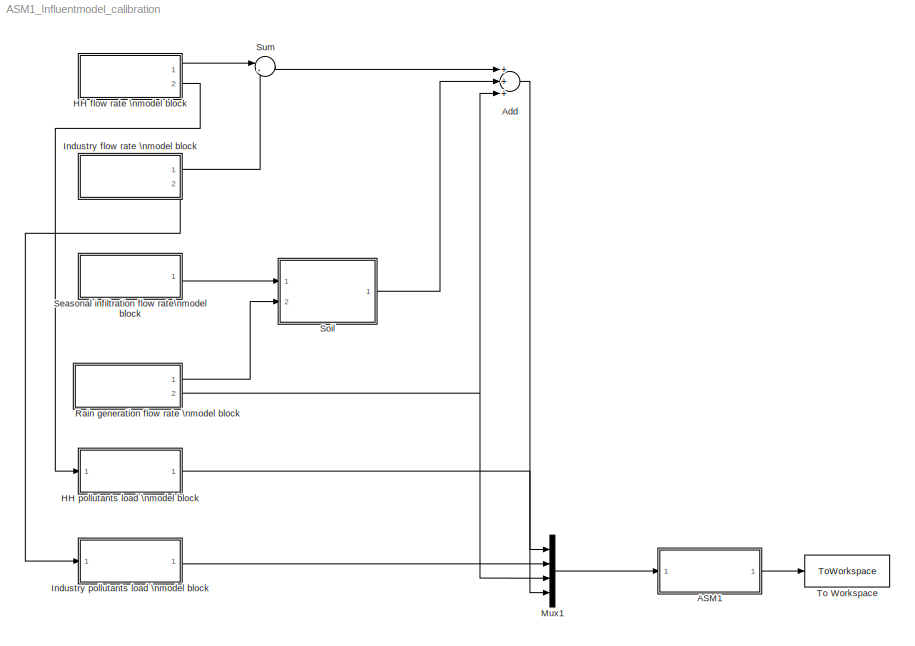
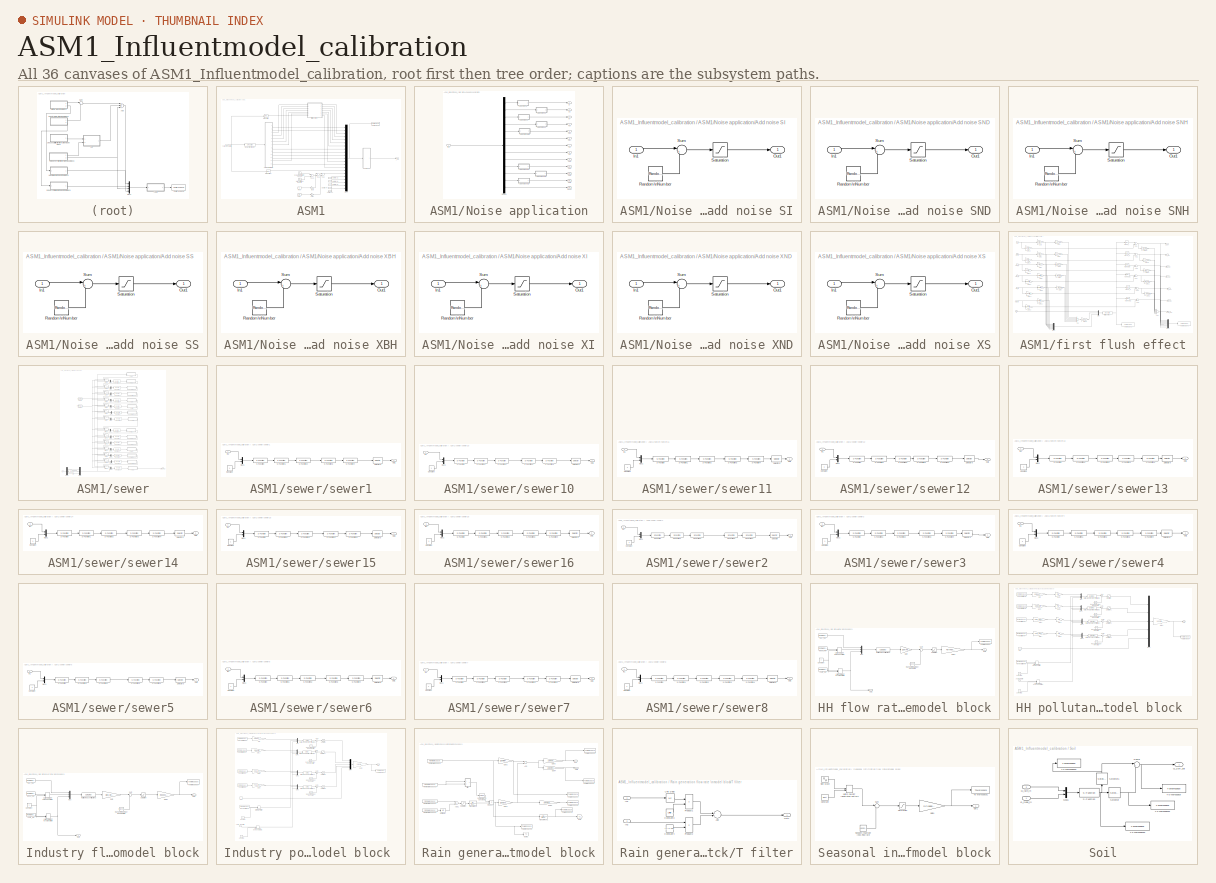
[diagram: thumbnail index - all 36 canvases of the model, root first then tree order]
MODEL ASM1_Influentmodel_calibration
KIND model
BLOCK [SubSystem] ASM1
  FunctionWithSeparateData = off
  MaskHideContents = off
  MinAlgLoopOccurrences = off
  Opaque = off
  Ports = [1, 1]
  PropExecContextOutsideSubsystem = off
  RTWSystemCode = Auto
  RequestExecContextInheritance = off
  SID = 1
BLOCK [S-Function] ASM1/BSM1_fractionator
  EnableBusSupport = off
  FunctionName = asm1_fractionation
  Parameters = ASM1_PARS, ASM1_FRACTIONS
  Ports = [1, 1]
  SID = 3
BLOCK [From] ASM1/From
  GotoTag = T1
  SID = 1596
  TagVisibility = global
BLOCK [From] ASM1/From1
  GotoTag = T2
  SID = 1597
  TagVisibility = global
BLOCK [Gain] ASM1/Gain
  Gain = 0.4
  OutDataTypeStr = Inherit: Inherit via internal rule
  ParamDataTypeStr = Inherit: Inherit via internal rule
  SID = 1598
  SaturateOnIntegerOverflow = off
BLOCK [Gain] ASM1/Gain1
  Gain = 0.4
  OutDataTypeStr = Inherit: Inherit via internal rule
  ParamDataTypeStr = Inherit: Inherit via internal rule
  SID = 1599
  SaturateOnIntegerOverflow = off
BLOCK [Mux] ASM1/Mux2
  DisplayOption = bar
  Inputs = 21
  Ports = [21, 1]
  SID = 4
BLOCK [SubSystem] ASM1/Noise application
  FunctionWithSeparateData = off
  MaskHideContents = off
  MinAlgLoopOccurrences = off
  Opaque = off
  Ports = [1, 13]
  PropExecContextOutsideSubsystem = off
  RTWSystemCode = Auto
  RequestExecContextInheritance = off
  SID = 5
BLOCK [SubSystem] ASM1/Noise application/Add noise SI
  FunctionWithSeparateData = off
  MaskHideContents = off
  MinAlgLoopOccurrences = off
  Opaque = off
  Ports = [1, 1]
  PropExecContextOutsideSubsystem = off
  RTWSystemCode = Auto
  RequestExecContextInheritance = off
  SID = 7
BLOCK [Inport] ASM1/Noise application/Add noise SI/In1
  IconDisplay = Port number
  SID = 8
BLOCK [Outport] ASM1/Noise application/Add noise SI/Out1
  IconDisplay = Port number
  SID = 12
BLOCK [RandomNumber] ASM1/Noise application/Add noise SI/Random\nNumber
  SID = 9
  SampleTime = SI_st
  Seed = SI_ns
  Variance = SI_nv*polnoiseswitch
BLOCK [Saturate] ASM1/Noise application/Add noise SI/Saturation
  InputPortMap = u0
  LowerLimit = SI_min
  Ports = [1, 1]
  SID = 10
  UpperLimit = SI_max
BLOCK [Sum] ASM1/Noise application/Add noise SI/Sum
  IconShape = round
  InputSameDT = off
  Inputs = |++
  OutDataTypeStr = Inherit: Inherit via internal rule
  Ports = [2, 1]
  SID = 11
BLOCK [SubSystem] ASM1/Noise application/Add noise SND
  FunctionWithSeparateData = off
  MaskHideContents = off
  MinAlgLoopOccurrences = off
  Opaque = off
  Ports = [1, 1]
  PropExecContextOutsideSubsystem = off
  RTWSystemCode = Auto
  RequestExecContextInheritance = off
  SID = 13
BLOCK [Inport] ASM1/Noise application/Add noise SND/In1
  IconDisplay = Port number
  SID = 14
BLOCK [Outport] ASM1/Noise application/Add noise SND/Out1
  IconDisplay = Port number
  SID = 18
BLOCK [RandomNumber] ASM1/Noise application/Add noise SND/Random\nNumber
  SID = 15
  SampleTime = SND_st
  Seed = SND_ns
  Variance = SND_nv*polnoiseswitch
BLOCK [Saturate] ASM1/Noise application/Add noise SND/Saturation
  InputPortMap = u0
  LowerLimit = SND_min
  Ports = [1, 1]
  SID = 16
  UpperLimit = SND_max
BLOCK [Sum] ASM1/Noise application/Add noise SND/Sum
  IconShape = round
  InputSameDT = off
  Inputs = |++
  OutDataTypeStr = Inherit: Inherit via internal rule
  Ports = [2, 1]
  SID = 17
BLOCK [SubSystem] ASM1/Noise application/Add noise SNH
  FunctionWithSeparateData = off
  MaskHideContents = off
  MinAlgLoopOccurrences = off
  Opaque = off
  Ports = [1, 1]
  PropExecContextOutsideSubsystem = off
  RTWSystemCode = Auto
  RequestExecContextInheritance = off
  SID = 19
BLOCK [Inport] ASM1/Noise application/Add noise SNH/In1
  IconDisplay = Port number
  SID = 20
BLOCK [Outport] ASM1/Noise application/Add noise SNH/Out1
  IconDisplay = Port number
  SID = 24
BLOCK [RandomNumber] ASM1/Noise application/Add noise SNH/Random\nNumber
  SID = 21
  SampleTime = SNH_st
  Seed = SNH_ns
  Variance = SNH_nv*polnoiseswitch
BLOCK [Saturate] ASM1/Noise application/Add noise SNH/Saturation
  InputPortMap = u0
  LowerLimit = SNH_min
  Ports = [1, 1]
  SID = 22
  UpperLimit = SNH_max
BLOCK [Sum] ASM1/Noise application/Add noise SNH/Sum
  IconShape = round
  InputSameDT = off
  Inputs = |++
  OutDataTypeStr = Inherit: Inherit via internal rule
  Ports = [2, 1]
  SID = 23
BLOCK [SubSystem] ASM1/Noise application/Add noise SS
  FunctionWithSeparateData = off
  MaskHideContents = off
  MinAlgLoopOccurrences = off
  Opaque = off
  Ports = [1, 1]
  PropExecContextOutsideSubsystem = off
  RTWSystemCode = Auto
  RequestExecContextInheritance = off
  SID = 25
BLOCK [Inport] ASM1/Noise application/Add noise SS/In1
  IconDisplay = Port number
  SID = 26
BLOCK [Outport] ASM1/Noise application/Add noise SS/Out1
  IconDisplay = Port number
  SID = 30
BLOCK [RandomNumber] ASM1/Noise application/Add noise SS/Random\nNumber
  SID = 27
  SampleTime = SS_st
  Seed = SS_ns
  Variance = SS_nv*polnoiseswitch
BLOCK [Saturate] ASM1/Noise application/Add noise SS/Saturation
  InputPortMap = u0
  LowerLimit = SS_min
  Ports = [1, 1]
  SID = 28
  UpperLimit = SS_max
BLOCK [Sum] ASM1/Noise application/Add noise SS/Sum
  IconShape = round
  InputSameDT = off
  Inputs = |++
  OutDataTypeStr = Inherit: Inherit via internal rule
  Ports = [2, 1]
  SID = 29
BLOCK [SubSystem] ASM1/Noise application/Add noise XBH
  FunctionWithSeparateData = off
  MaskHideContents = off
  MinAlgLoopOccurrences = off
  Opaque = off
  Ports = [1, 1]
  PropExecContextOutsideSubsystem = off
  RTWSystemCode = Auto
  RequestExecContextInheritance = off
  SID = 31
BLOCK [Inport] ASM1/Noise application/Add noise XBH/In1
  IconDisplay = Port number
  SID = 32
BLOCK [Outport] ASM1/Noise application/Add noise XBH/Out1
  IconDisplay = Port number
  SID = 36
BLOCK [RandomNumber] ASM1/Noise application/Add noise XBH/Random\nNumber
  SID = 33
  SampleTime = XBH_st
  Seed = XBH_ns
  Variance = XBH_nv*polnoiseswitch
BLOCK [Saturate] ASM1/Noise application/Add noise XBH/Saturation
  InputPortMap = u0
  LowerLimit = XBH_min
  Ports = [1, 1]
  SID = 34
  UpperLimit = XBH_max
BLOCK [Sum] ASM1/Noise application/Add noise XBH/Sum
  IconShape = round
  InputSameDT = off
  Inputs = |++
  OutDataTypeStr = Inherit: Inherit via internal rule
  Ports = [2, 1]
  SID = 35
BLOCK [SubSystem] ASM1/Noise application/Add noise XI
  FunctionWithSeparateData = off
  MaskHideContents = off
  MinAlgLoopOccurrences = off
  Opaque = off
  Ports = [1, 1]
  PropExecContextOutsideSubsystem = off
  RTWSystemCode = Auto
  RequestExecContextInheritance = off
  SID = 37
BLOCK [Inport] ASM1/Noise application/Add noise XI/In1
  IconDisplay = Port number
  SID = 38
BLOCK [Outport] ASM1/Noise application/Add noise XI/Out1
  IconDisplay = Port number
  SID = 42
BLOCK [RandomNumber] ASM1/Noise application/Add noise XI/Random\nNumber
  SID = 39
  SampleTime = XI_st
  Seed = XI_ns
  Variance = XI_nv*polnoiseswitch
BLOCK [Saturate] ASM1/Noise application/Add noise XI/Saturation
  InputPortMap = u0
  LowerLimit = XI_min
  Ports = [1, 1]
  SID = 40
  UpperLimit = XI_max
BLOCK [Sum] ASM1/Noise application/Add noise XI/Sum
  IconShape = round
  InputSameDT = off
  Inputs = |++
  OutDataTypeStr = Inherit: Inherit via internal rule
  Ports = [2, 1]
  SID = 41
BLOCK [SubSystem] ASM1/Noise application/Add noise XND
  FunctionWithSeparateData = off
  MaskHideContents = off
  MinAlgLoopOccurrences = off
  Opaque = off
  Ports = [1, 1]
  PropExecContextOutsideSubsystem = off
  RTWSystemCode = Auto
  RequestExecContextInheritance = off
  SID = 43
BLOCK [Inport] ASM1/Noise application/Add noise XND/In1
  IconDisplay = Port number
  SID = 44
BLOCK [Outport] ASM1/Noise application/Add noise XND/Out1
  IconDisplay = Port number
  SID = 48
BLOCK [RandomNumber] ASM1/Noise application/Add noise XND/Random\nNumber
  SID = 45
  SampleTime = XND_st
  Seed = XND_ns
  Variance = XND_nv*polnoiseswitch
BLOCK [Saturate] ASM1/Noise application/Add noise XND/Saturation
  InputPortMap = u0
  LowerLimit = XND_min
  Ports = [1, 1]
  SID = 46
  UpperLimit = XND_max
BLOCK [Sum] ASM1/Noise application/Add noise XND/Sum
  IconShape = round
  InputSameDT = off
  Inputs = |++
  OutDataTypeStr = Inherit: Inherit via internal rule
  Ports = [2, 1]
  SID = 47
BLOCK [SubSystem] ASM1/Noise application/Add noise XS
  FunctionWithSeparateData = off
  MaskHideContents = off
  MinAlgLoopOccurrences = off
  Opaque = off
  Ports = [1, 1]
  PropExecContextOutsideSubsystem = off
  RTWSystemCode = Auto
  RequestExecContextInheritance = off
  SID = 49
BLOCK [Inport] ASM1/Noise application/Add noise XS/In1
  IconDisplay = Port number
  SID = 50
BLOCK [Outport] ASM1/Noise application/Add noise XS/Out1
  IconDisplay = Port number
  SID = 54
BLOCK [RandomNumber] ASM1/Noise application/Add noise XS/Random\nNumber
  SID = 51
  SampleTime = XS_st
  Seed = XS_ns
  Variance = XS_nv*polnoiseswitch
BLOCK [Saturate] ASM1/Noise application/Add noise XS/Saturation
  InputPortMap = u0
  LowerLimit = XS_min
  Ports = [1, 1]
  SID = 52
  UpperLimit = XS_max
BLOCK [Sum] ASM1/Noise application/Add noise XS/Sum
  IconShape = round
  InputSameDT = off
  Inputs = |++
  OutDataTypeStr = Inherit: Inherit via internal rule
  Ports = [2, 1]
  SID = 53
BLOCK [Demux] ASM1/Noise application/Demux
  DisplayOption = bar
  Outputs = [1 1 1 1 1 1 1 1 1 1 1 1 1]
  Ports = [1, 13]
  SID = 55
BLOCK [Inport] ASM1/Noise application/In1
  IconDisplay = Port number
  SID = 6
BLOCK [Outport] ASM1/Noise application/SALK
  IconDisplay = Port number
  Port = 13
  SID = 68
BLOCK [Outport] ASM1/Noise application/SI
  IconDisplay = Port number
  SID = 56
BLOCK [Outport] ASM1/Noise application/SND
  IconDisplay = Port number
  Port = 11
  SID = 66
BLOCK [Outport] ASM1/Noise application/SNH
  IconDisplay = Port number
  Port = 10
  SID = 65
BLOCK [Outport] ASM1/Noise application/SNO
  IconDisplay = Port number
  Port = 9
  SID = 64
BLOCK [Outport] ASM1/Noise application/SO
  IconDisplay = Port number
  Port = 8
  SID = 63
BLOCK [Outport] ASM1/Noise application/SS
  IconDisplay = Port number
  Port = 2
  SID = 57
BLOCK [Outport] ASM1/Noise application/XBA
  IconDisplay = Port number
  Port = 6
  SID = 61
BLOCK [Outport] ASM1/Noise application/XBH
  IconDisplay = Port number
  Port = 5
  SID = 60
BLOCK [Outport] ASM1/Noise application/XI
  IconDisplay = Port number
  Port = 3
  SID = 58
BLOCK [Outport] ASM1/Noise application/XND
  IconDisplay = Port number
  Port = 12
  SID = 67
BLOCK [Outport] ASM1/Noise application/XS
  IconDisplay = Port number
  Port = 4
  SID = 59
BLOCK [Outport] ASM1/Noise application/XU
  IconDisplay = Port number
  Port = 7
  SID = 62
BLOCK [Sum] ASM1/TSS1
  InputSameDT = off
  Inputs = +-
  OutDataTypeStr = Inherit: Inherit via internal rule
  Ports = [2, 1]
  SID = 1600
  SaturateOnIntegerOverflow = off
BLOCK [Sum] ASM1/TSS10
  InputSameDT = off
  OutDataTypeStr = Inherit: Inherit via internal rule
  Ports = [2, 1]
  SID = 1601
  SaturateOnIntegerOverflow = off
BLOCK [Sum] ASM1/TSS2
  InputSameDT = off
  Inputs = +-
  OutDataTypeStr = Inherit: Inherit via internal rule
  Ports = [2, 1]
  SID = 1602
  SaturateOnIntegerOverflow = off
BLOCK [ToWorkspace] ASM1/To Workspace
  MaxDataPoints = inf
  Ports = [1]
  SID = 70
  SampleTime = -1
  SaveFormat = Array
  VariableName = simout_ASM
BLOCK [Outport] ASM1/_out
  IconDisplay = Port number
  SID = 238
BLOCK [Sin] ASM1/daily variation\n module
  Amplitude = TdAmp
  Bias = TdBias
  Frequency = TdFreq
  Phase = TdPhase
  Ports = [0, 1]
  SID = 1603
  SampleTime = 0
BLOCK [Constant] ASM1/dummy 1 S
  SID = 72
  Value = 0
BLOCK [Constant] ASM1/dummy 2 S
  SID = 73
  Value = 0
BLOCK [Constant] ASM1/dummy 3 S
  SID = 74
  Value = 0
BLOCK [Constant] ASM1/dummy 4 X
  SID = 75
  Value = 0
BLOCK [Constant] ASM1/dummy 5 X
  SID = 76
  Value = 0
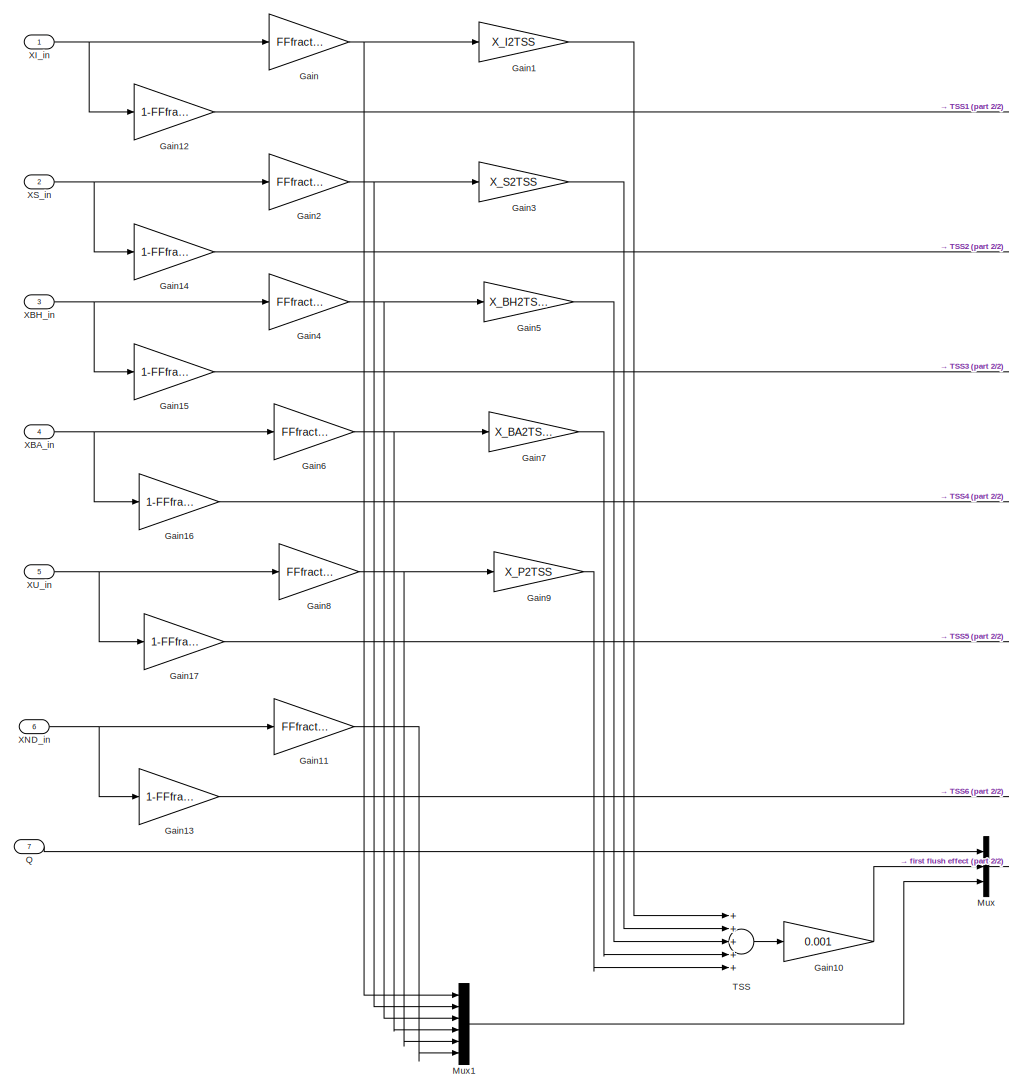
[diagram: ASM1/first flush effect - part 1/2, left side, full height]
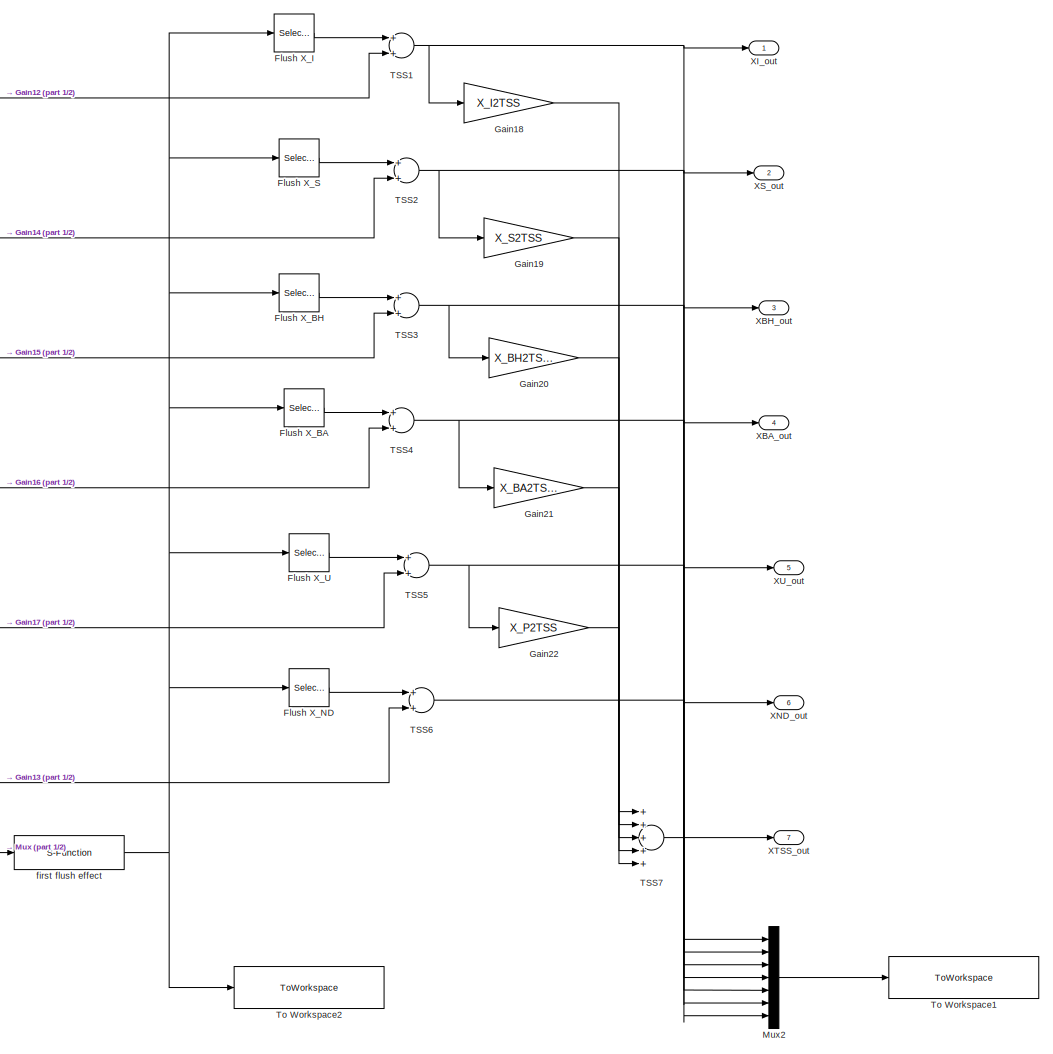
[diagram: ASM1/first flush effect - part 2/2, right side, full height]
BLOCK [SubSystem] ASM1/first flush effect
  FunctionWithSeparateData = off
  MaskHideContents = off
  MinAlgLoopOccurrences = off
  Opaque = off
  Ports = [7, 7]
  PropExecContextOutsideSubsystem = off
  RTWSystemCode = Auto
  RequestExecContextInheritance = off
  SID = 77
BLOCK [Selector] ASM1/first flush effect/Flush X_BA
  IndexOptions = Index vector (dialog)
  Indices = [6]
  InputPortWidth = 15
  OutputSizes = 1
  Ports = [1, 1]
  SID = 85
BLOCK [Selector] ASM1/first flush effect/Flush X_BH
  IndexOptions = Index vector (dialog)
  Indices = [5]
  InputPortWidth = 15
  OutputSizes = 1
  Ports = [1, 1]
  SID = 86
BLOCK [Selector] ASM1/first flush effect/Flush X_I
  IndexOptions = Index vector (dialog)
  Indices = [3]
  InputPortWidth = 15
  OutputSizes = 1
  Ports = [1, 1]
  SID = 87
BLOCK [Selector] ASM1/first flush effect/Flush X_ND
  IndexOptions = Index vector (dialog)
  Indices = [8]
  InputPortWidth = 15
  OutputSizes = 1
  Ports = [1, 1]
  SID = 88
BLOCK [Selector] ASM1/first flush effect/Flush X_S
  IndexOptions = Index vector (dialog)
  Indices = [4]
  InputPortWidth = 15
  OutputSizes = 1
  Ports = [1, 1]
  SID = 89
BLOCK [Selector] ASM1/first flush effect/Flush X_U
  IndexOptions = Index vector (dialog)
  Indices = [7]
  InputPortWidth = 15
  OutputSizes = 1
  Ports = [1, 1]
  SID = 90
BLOCK [Gain] ASM1/first flush effect/Gain
  Gain = FFfraction
  OutDataTypeStr = Inherit: Inherit via internal rule
  ParamDataTypeStr = Inherit: Inherit via internal rule
  SID = 91
  SaturateOnIntegerOverflow = off
BLOCK [Gain] ASM1/first flush effect/Gain1
  Gain = X_I2TSS
  OutDataTypeStr = Inherit: Inherit via internal rule
  ParamDataTypeStr = Inherit: Inherit via internal rule
  SID = 92
  SaturateOnIntegerOverflow = off
BLOCK [Gain] ASM1/first flush effect/Gain10
  Gain = 0.001
  OutDataTypeStr = Inherit: Inherit via internal rule
  ParamDataTypeStr = Inherit: Inherit via internal rule
  SID = 93
  SaturateOnIntegerOverflow = off
BLOCK [Gain] ASM1/first flush effect/Gain11
  Gain = FFfraction
  OutDataTypeStr = Inherit: Inherit via internal rule
  ParamDataTypeStr = Inherit: Inherit via internal rule
  SID = 94
  SaturateOnIntegerOverflow = off
BLOCK [Gain] ASM1/first flush effect/Gain12
  Gain = 1-FFfraction
  OutDataTypeStr = Inherit: Inherit via internal rule
  ParamDataTypeStr = Inherit: Inherit via internal rule
  SID = 95
  SaturateOnIntegerOverflow = off
BLOCK [Gain] ASM1/first flush effect/Gain13
  Gain = 1-FFfraction
  OutDataTypeStr = Inherit: Inherit via internal rule
  ParamDataTypeStr = Inherit: Inherit via internal rule
  SID = 96
  SaturateOnIntegerOverflow = off
BLOCK [Gain] ASM1/first flush effect/Gain14
  Gain = 1-FFfraction
  OutDataTypeStr = Inherit: Inherit via internal rule
  ParamDataTypeStr = Inherit: Inherit via internal rule
  SID = 97
  SaturateOnIntegerOverflow = off
BLOCK [Gain] ASM1/first flush effect/Gain15
  Gain = 1-FFfraction
  OutDataTypeStr = Inherit: Inherit via internal rule
  ParamDataTypeStr = Inherit: Inherit via internal rule
  SID = 98
  SaturateOnIntegerOverflow = off
BLOCK [Gain] ASM1/first flush effect/Gain16
  Gain = 1-FFfraction
  OutDataTypeStr = Inherit: Inherit via internal rule
  ParamDataTypeStr = Inherit: Inherit via internal rule
  SID = 99
  SaturateOnIntegerOverflow = off
BLOCK [Gain] ASM1/first flush effect/Gain17
  Gain = 1-FFfraction
  OutDataTypeStr = Inherit: Inherit via internal rule
  ParamDataTypeStr = Inherit: Inherit via internal rule
  SID = 100
  SaturateOnIntegerOverflow = off
BLOCK [Gain] ASM1/first flush effect/Gain18
  Gain = X_I2TSS
  OutDataTypeStr = Inherit: Inherit via internal rule
  ParamDataTypeStr = Inherit: Inherit via internal rule
  SID = 101
  SaturateOnIntegerOverflow = off
BLOCK [Gain] ASM1/first flush effect/Gain19
  Gain = X_S2TSS
  OutDataTypeStr = Inherit: Inherit via internal rule
  ParamDataTypeStr = Inherit: Inherit via internal rule
  SID = 102
  SaturateOnIntegerOverflow = off
BLOCK [Gain] ASM1/first flush effect/Gain2
  Gain = FFfraction
  OutDataTypeStr = Inherit: Inherit via internal rule
  ParamDataTypeStr = Inherit: Inherit via internal rule
  SID = 103
  SaturateOnIntegerOverflow = off
BLOCK [Gain] ASM1/first flush effect/Gain20
  Gain = X_BH2TSS
  OutDataTypeStr = Inherit: Inherit via internal rule
  ParamDataTypeStr = Inherit: Inherit via internal rule
  SID = 104
  SaturateOnIntegerOverflow = off
BLOCK [Gain] ASM1/first flush effect/Gain21
  Gain = X_BA2TSS
  OutDataTypeStr = Inherit: Inherit via internal rule
  ParamDataTypeStr = Inherit: Inherit via internal rule
  SID = 105
  SaturateOnIntegerOverflow = off
BLOCK [Gain] ASM1/first flush effect/Gain22
  Gain = X_P2TSS
  OutDataTypeStr = Inherit: Inherit via internal rule
  ParamDataTypeStr = Inherit: Inherit via internal rule
  SID = 106
  SaturateOnIntegerOverflow = off
BLOCK [Gain] ASM1/first flush effect/Gain3
  Gain = X_S2TSS
  OutDataTypeStr = Inherit: Inherit via internal rule
  ParamDataTypeStr = Inherit: Inherit via internal rule
  SID = 107
  SaturateOnIntegerOverflow = off
BLOCK [Gain] ASM1/first flush effect/Gain4
  Gain = FFfraction
  OutDataTypeStr = Inherit: Inherit via internal rule
  ParamDataTypeStr = Inherit: Inherit via internal rule
  SID = 108
  SaturateOnIntegerOverflow = off
BLOCK [Gain] ASM1/first flush effect/Gain5
  Gain = X_BH2TSS
  OutDataTypeStr = Inherit: Inherit via internal rule
  ParamDataTypeStr = Inherit: Inherit via internal rule
  SID = 109
  SaturateOnIntegerOverflow = off
BLOCK [Gain] ASM1/first flush effect/Gain6
  Gain = FFfraction
  OutDataTypeStr = Inherit: Inherit via internal rule
  ParamDataTypeStr = Inherit: Inherit via internal rule
  SID = 110
  SaturateOnIntegerOverflow = off
BLOCK [Gain] ASM1/first flush effect/Gain7
  Gain = X_BA2TSS
  OutDataTypeStr = Inherit: Inherit via internal rule
  ParamDataTypeStr = Inherit: Inherit via internal rule
  SID = 111
  SaturateOnIntegerOverflow = off
BLOCK [Gain] ASM1/first flush effect/Gain8
  Gain = FFfraction
  OutDataTypeStr = Inherit: Inherit via internal rule
  ParamDataTypeStr = Inherit: Inherit via internal rule
  SID = 112
  SaturateOnIntegerOverflow = off
BLOCK [Gain] ASM1/first flush effect/Gain9
  Gain = X_P2TSS
  OutDataTypeStr = Inherit: Inherit via internal rule
  ParamDataTypeStr = Inherit: Inherit via internal rule
  SID = 113
  SaturateOnIntegerOverflow = off
BLOCK [Mux] ASM1/first flush effect/Mux
  DisplayOption = bar
  Inputs = 3
  Ports = [3, 1]
  SID = 114
BLOCK [Mux] ASM1/first flush effect/Mux1
  DisplayOption = bar
  Inputs = 6
  Ports = [6, 1]
  SID = 115
BLOCK [Mux] ASM1/first flush effect/Mux2
  DisplayOption = bar
  Inputs = 7
  Ports = [7, 1]
  SID = 116
BLOCK [Inport] ASM1/first flush effect/Q
  IconDisplay = Port number
  Port = 7
  SID = 84
BLOCK [Sum] ASM1/first flush effect/TSS
  InputSameDT = off
  Inputs = +++++
  OutDataTypeStr = Inherit: Inherit via internal rule
  Ports = [5, 1]
  SID = 117
  SaturateOnIntegerOverflow = off
BLOCK [Sum] ASM1/first flush effect/TSS1
  InputSameDT = off
  OutDataTypeStr = Inherit: Inherit via internal rule
  Ports = [2, 1]
  SID = 118
  SaturateOnIntegerOverflow = off
BLOCK [Sum] ASM1/first flush effect/TSS2
  InputSameDT = off
  OutDataTypeStr = Inherit: Inherit via internal rule
  Ports = [2, 1]
  SID = 119
  SaturateOnIntegerOverflow = off
BLOCK [Sum] ASM1/first flush effect/TSS3
  InputSameDT = off
  OutDataTypeStr = Inherit: Inherit via internal rule
  Ports = [2, 1]
  SID = 120
  SaturateOnIntegerOverflow = off
BLOCK [Sum] ASM1/first flush effect/TSS4
  InputSameDT = off
  OutDataTypeStr = Inherit: Inherit via internal rule
  Ports = [2, 1]
  SID = 121
  SaturateOnIntegerOverflow = off
BLOCK [Sum] ASM1/first flush effect/TSS5
  InputSameDT = off
  OutDataTypeStr = Inherit: Inherit via internal rule
  Ports = [2, 1]
  SID = 122
  SaturateOnIntegerOverflow = off
BLOCK [Sum] ASM1/first flush effect/TSS6
  InputSameDT = off
  OutDataTypeStr = Inherit: Inherit via internal rule
  Ports = [2, 1]
  SID = 123
  SaturateOnIntegerOverflow = off
BLOCK [Sum] ASM1/first flush effect/TSS7
  InputSameDT = off
  Inputs = +++++
  OutDataTypeStr = Inherit: Inherit via internal rule
  Ports = [5, 1]
  SID = 124
  SaturateOnIntegerOverflow = off
BLOCK [ToWorkspace] ASM1/first flush effect/To Workspace1
  MaxDataPoints = inf
  Ports = [1]
  SID = 125
  SampleTime = -1
  SaveFormat = Array
  VariableName = firstflush_effectASM1
BLOCK [ToWorkspace] ASM1/first flush effect/To Workspace2
  MaxDataPoints = inf
  Ports = [1]
  SID = 1351
  SampleTime = -1
  SaveFormat = Array
  VariableName = firstflush_effectASM
BLOCK [Inport] ASM1/first flush effect/XBA_in
  IconDisplay = Port number
  Port = 4
  SID = 81
BLOCK [Outport] ASM1/first flush effect/XBA_out
  IconDisplay = Port number
  Port = 4
  SID = 130
BLOCK [Inport] ASM1/first flush effect/XBH_in
  IconDisplay = Port number
  Port = 3
  SID = 80
BLOCK [Outport] ASM1/first flush effect/XBH_out
  IconDisplay = Port number
  Port = 3
  SID = 129
BLOCK [Inport] ASM1/first flush effect/XI_in
  IconDisplay = Port number
  SID = 78
BLOCK [Outport] ASM1/first flush effect/XI_out
  IconDisplay = Port number
  SID = 127
BLOCK [Inport] ASM1/first flush effect/XND_in
  IconDisplay = Port number
  Port = 6
  SID = 83
BLOCK [Outport] ASM1/first flush effect/XND_out
  IconDisplay = Port number
  Port = 6
  SID = 132
BLOCK [Inport] ASM1/first flush effect/XS_in
  IconDisplay = Port number
  Port = 2
  SID = 79
BLOCK [Outport] ASM1/first flush effect/XS_out
  IconDisplay = Port number
  Port = 2
  SID = 128
BLOCK [Outport] ASM1/first flush effect/XTSS_out
  IconDisplay = Port number
  Port = 7
  SID = 133
BLOCK [Inport] ASM1/first flush effect/XU_in
  IconDisplay = Port number
  Port = 5
  SID = 82
BLOCK [Outport] ASM1/first flush effect/XU_out
  IconDisplay = Port number
  Port = 5
  SID = 131
BLOCK [S-Function] ASM1/first flush effect/first flush effect
  EnableBusSupport = off
  FunctionName = firstflush_ASM1
  Parameters = ASM1_XINIT, SSPARS
  Ports = [1, 1]
  SID = 126
BLOCK [Selector] ASM1/influent flow
  IndexOptions = Index vector (dialog)
  Indices = [12]
  InputPortWidth = 12
  OutputSizes = 1
  Ports = [1, 1]
  SID = 134
BLOCK [Selector] ASM1/influent flow1
  IndexOptions = Index vector (dialog)
  Indices = [12]
  InputPortWidth = 12
  OutputSizes = 1
  Ports = [1, 1]
  SID = 1364
BLOCK [Sin] ASM1/seasonal variation\n module
  Amplitude = TAmp
  Bias = TBias
  Frequency = TFreq
  Phase = TPhase
  Ports = [0, 1]
  SID = 1604
  SampleTime = 0
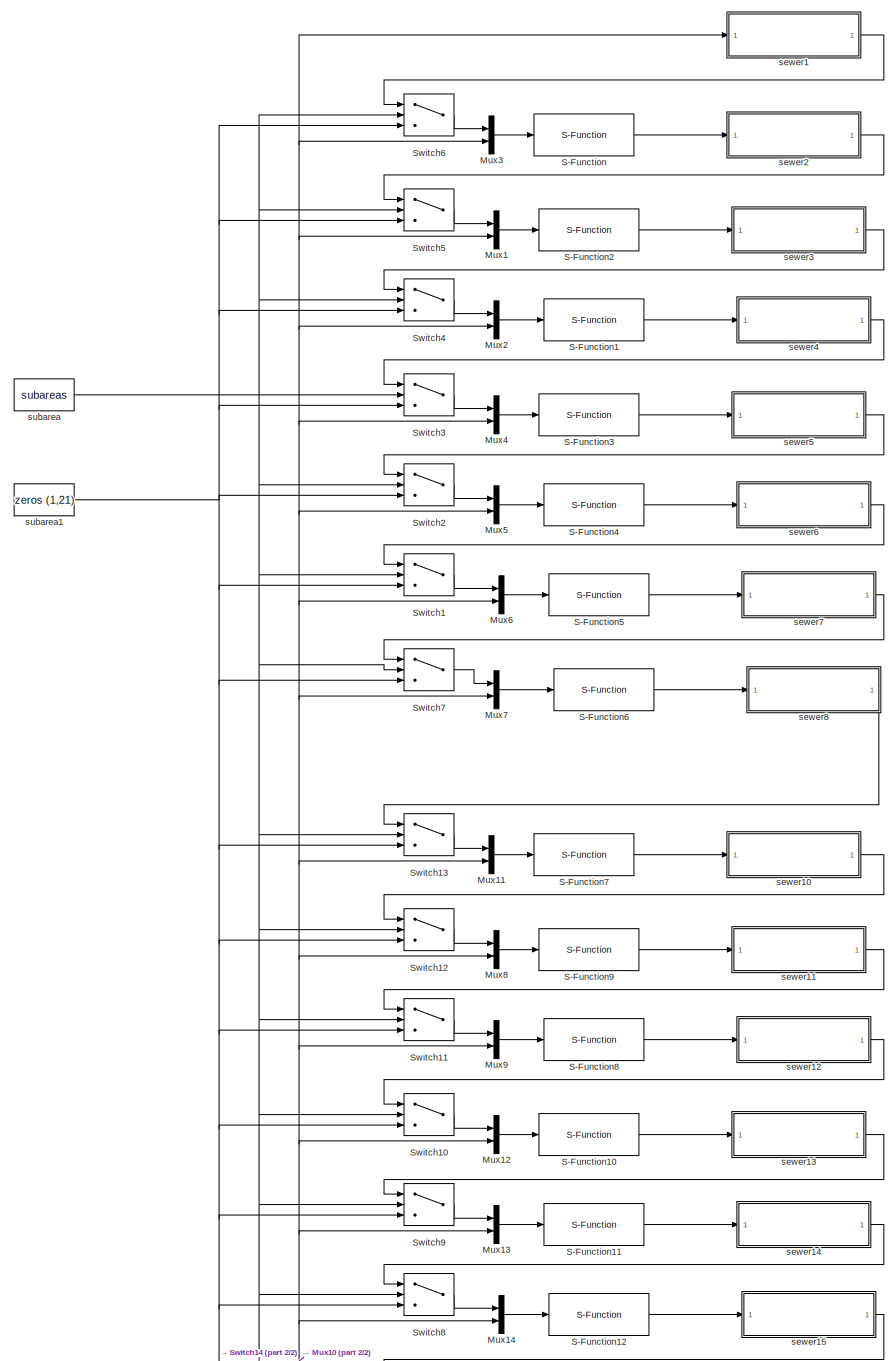
[diagram: ASM1/sewer - part 1/2, center side, full height]
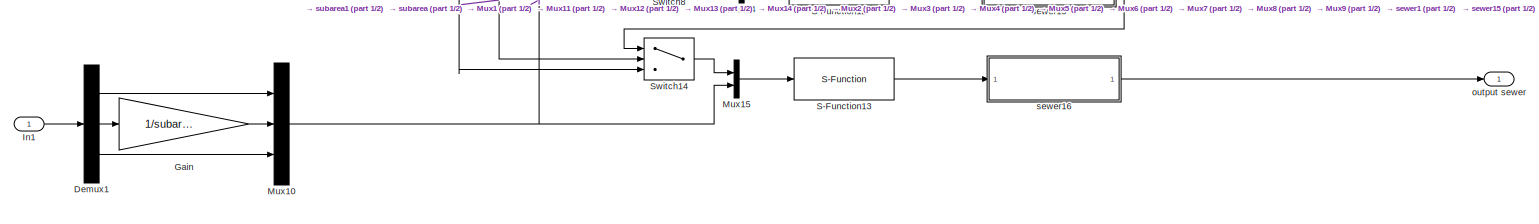
[diagram: ASM1/sewer - part 2/2, full width, bottom band]
BLOCK [SubSystem] ASM1/sewer
  FunctionWithSeparateData = off
  MaskHideContents = off
  MinAlgLoopOccurrences = off
  Opaque = off
  Ports = [1, 1]
  PropExecContextOutsideSubsystem = off
  RTWSystemCode = Auto
  RequestExecContextInheritance = off
  SID = 1379
BLOCK [Demux] ASM1/sewer/Demux1
  Outputs = [14 1 6]
  Ports = [1, 3]
  SID = 1381
BLOCK [Gain] ASM1/sewer/Gain
  Gain = 1/subareas
  OutDataTypeStr = Inherit: Inherit via internal rule
  ParamDataTypeStr = Inherit: Inherit via internal rule
  SID = 1382
  SaturateOnIntegerOverflow = off
BLOCK [Inport] ASM1/sewer/In1
  IconDisplay = Port number
  SID = 1380
BLOCK [Mux] ASM1/sewer/Mux1
  DisplayOption = bar
  Inputs = 2
  Ports = [2, 1]
  SID = 1383
BLOCK [Mux] ASM1/sewer/Mux10
  DisplayOption = bar
  Inputs = 3
  Ports = [3, 1]
  SID = 1384
BLOCK [Mux] ASM1/sewer/Mux11
  DisplayOption = bar
  Inputs = 2
  Ports = [2, 1]
  SID = 1385
BLOCK [Mux] ASM1/sewer/Mux12
  DisplayOption = bar
  Inputs = 2
  Ports = [2, 1]
  SID = 1386
BLOCK [Mux] ASM1/sewer/Mux13
  DisplayOption = bar
  Inputs = 2
  Ports = [2, 1]
  SID = 1387
BLOCK [Mux] ASM1/sewer/Mux14
  DisplayOption = bar
  Inputs = 2
  Ports = [2, 1]
  SID = 1388
BLOCK [Mux] ASM1/sewer/Mux15
  DisplayOption = bar
  Inputs = 2
  Ports = [2, 1]
  SID = 1389
BLOCK [Mux] ASM1/sewer/Mux2
  DisplayOption = bar
  Inputs = 2
  Ports = [2, 1]
  SID = 1390
BLOCK [Mux] ASM1/sewer/Mux3
  DisplayOption = bar
  Inputs = 2
  Ports = [2, 1]
  SID = 1391
BLOCK [Mux] ASM1/sewer/Mux4
  DisplayOption = bar
  Inputs = 2
  Ports = [2, 1]
  SID = 1392
BLOCK [Mux] ASM1/sewer/Mux5
  DisplayOption = bar
  Inputs = 2
  Ports = [2, 1]
  SID = 1393
BLOCK [Mux] ASM1/sewer/Mux6
  DisplayOption = bar
  Inputs = 2
  Ports = [2, 1]
  SID = 1394
BLOCK [Mux] ASM1/sewer/Mux7
  DisplayOption = bar
  Inputs = 2
  Ports = [2, 1]
  SID = 1395
BLOCK [Mux] ASM1/sewer/Mux8
  DisplayOption = bar
  Inputs = 2
  Ports = [2, 1]
  SID = 1396
BLOCK [Mux] ASM1/sewer/Mux9
  DisplayOption = bar
  Inputs = 2
  Ports = [2, 1]
  SID = 1397
BLOCK [S-Function] ASM1/sewer/S-Function
  EnableBusSupport = off
  FunctionName = asm1_combiner
  Ports = [1, 1]
  SID = 1398
BLOCK [S-Function] ASM1/sewer/S-Function1
  EnableBusSupport = off
  FunctionName = asm1_combiner
  Ports = [1, 1]
  SID = 1399
BLOCK [S-Function] ASM1/sewer/S-Function10
  EnableBusSupport = off
  FunctionName = asm1_combiner
  Ports = [1, 1]
  SID = 1400
BLOCK [S-Function] ASM1/sewer/S-Function11
  EnableBusSupport = off
  FunctionName = asm1_combiner
  Ports = [1, 1]
  SID = 1401
BLOCK [S-Function] ASM1/sewer/S-Function12
  EnableBusSupport = off
  FunctionName = asm1_combiner
  Ports = [1, 1]
  SID = 1402
BLOCK [S-Function] ASM1/sewer/S-Function13
  EnableBusSupport = off
  FunctionName = asm1_combiner
  Ports = [1, 1]
  SID = 1403
BLOCK [S-Function] ASM1/sewer/S-Function2
  EnableBusSupport = off
  FunctionName = asm1_combiner
  Ports = [1, 1]
  SID = 1404
BLOCK [S-Function] ASM1/sewer/S-Function3
  EnableBusSupport = off
  FunctionName = asm1_combiner
  Ports = [1, 1]
  SID = 1405
BLOCK [S-Function] ASM1/sewer/S-Function4
  EnableBusSupport = off
  FunctionName = asm1_combiner
  Ports = [1, 1]
  SID = 1406
BLOCK [S-Function] ASM1/sewer/S-Function5
  EnableBusSupport = off
  FunctionName = asm1_combiner
  Ports = [1, 1]
  SID = 1407
BLOCK [S-Function] ASM1/sewer/S-Function6
  EnableBusSupport = off
  FunctionName = asm1_combiner
  Ports = [1, 1]
  SID = 1408
BLOCK [S-Function] ASM1/sewer/S-Function7
  EnableBusSupport = off
  FunctionName = asm1_combiner
  Ports = [1, 1]
  SID = 1409
BLOCK [S-Function] ASM1/sewer/S-Function8
  EnableBusSupport = off
  FunctionName = asm1_combiner
  Ports = [1, 1]
  SID = 1410
BLOCK [S-Function] ASM1/sewer/S-Function9
  EnableBusSupport = off
  FunctionName = asm1_combiner
  Ports = [1, 1]
  SID = 1411
BLOCK [Switch] ASM1/sewer/Switch1
  InputSameDT = off
  SID = 1412
  Threshold = 10
BLOCK [Switch] ASM1/sewer/Switch10
  InputSameDT = off
  SID = 1413
  Threshold = 5
BLOCK [Switch] ASM1/sewer/Switch11
  InputSameDT = off
  SID = 1414
  Threshold = 6
BLOCK [Switch] ASM1/sewer/Switch12
  InputSameDT = off
  SID = 1415
  Threshold = 7
BLOCK [Switch] ASM1/sewer/Switch13
  InputSameDT = off
  SID = 1416
  Threshold = 8
BLOCK [Switch] ASM1/sewer/Switch14
  InputSameDT = off
  SID = 1417
  Threshold = 3
BLOCK [Switch] ASM1/sewer/Switch2
  InputSameDT = off
  SID = 1418
  Threshold = 11
BLOCK [Switch] ASM1/sewer/Switch3
  InputSameDT = off
  SID = 1419
  Threshold = 12
BLOCK [Switch] ASM1/sewer/Switch4
  InputSameDT = off
  SID = 1420
  Threshold = 13
BLOCK [Switch] ASM1/sewer/Switch5
  InputSameDT = off
  SID = 1421
  Threshold = 14
BLOCK [Switch] ASM1/sewer/Switch6
  InputSameDT = off
  SID = 1422
  Threshold = 15
BLOCK [Switch] ASM1/sewer/Switch7
  InputSameDT = off
  SID = 1423
  Threshold = 9
BLOCK [Switch] ASM1/sewer/Switch8
  InputSameDT = off
  SID = 1424
  Threshold = 3
BLOCK [Switch] ASM1/sewer/Switch9
  InputSameDT = off
  SID = 1425
  Threshold = 4
BLOCK [Outport] ASM1/sewer/output sewer
  IconDisplay = Port number
  SID = 1563
BLOCK [SubSystem] ASM1/sewer/sewer1
  FunctionWithSeparateData = off
  MaskHideContents = off
  MinAlgLoopOccurrences = off
  Opaque = off
  Ports = [1, 1]
  PropExecContextOutsideSubsystem = off
  RTWSystemCode = Auto
  RequestExecContextInheritance = off
  SID = 1426
BLOCK [Constant] ASM1/sewer/sewer1/Constant
  SID = 1428
BLOCK [Inport] ASM1/sewer/sewer1/In1
  IconDisplay = Port number
  SID = 1427
BLOCK [Mux] ASM1/sewer/sewer1/Mux1
  DisplayOption = bar
  Inputs = 2
  Ports = [2, 1]
  SID = 1429
BLOCK [Outport] ASM1/sewer/sewer1/Out1
  IconDisplay = Port number
  SID = 1434
BLOCK [S-Function] ASM1/sewer/sewer1/S-Function
  EnableBusSupport = off
  FunctionName = sewer_asm1
  Parameters = ASM1_SEWERINIT, ASM1_PARS, SPAR
  Ports = [1, 1]
  SID = 1430
BLOCK [S-Function] ASM1/sewer/sewer1/S-Function1
  EnableBusSupport = off
  FunctionName = sewer_asm1
  Parameters = ASM1_SEWERINIT, ASM1_PARS, SPAR
  Ports = [1, 1]
  SID = 1431
BLOCK [S-Function] ASM1/sewer/sewer1/S-Function2
  EnableBusSupport = off
  FunctionName = sewer_asm1
  Parameters = ASM1_SEWERINIT, ASM1_PARS, SPAR
  Ports = [1, 1]
  SID = 1432
BLOCK [S-Function] ASM1/sewer/sewer1/S-Function3
  EnableBusSupport = off
  FunctionName = sewer_asm1
  Parameters = ASM1_SEWERINIT, ASM1_PARS, SPAR
  Ports = [1, 1]
  SID = 1566
BLOCK [S-Function] ASM1/sewer/sewer1/S-Function4
  EnableBusSupport = off
  FunctionName = sewer_asm1
  Parameters = ASM1_SEWERINIT, ASM1_PARS, SPAR
  Ports = [1, 1]
  SID = 1567
BLOCK [Selector] ASM1/sewer/sewer1/Selector9
  IndexOptions = Index vector (dialog)
  Indices = [1 2 3 4 5 6 7 8 9 10 11 12 13 14 15 16 17 18 19 20 21]
  InputPortWidth = 22
  OutputSizes = 1
  Ports = [1, 1]
  SID = 1433
BLOCK [SubSystem] ASM1/sewer/sewer10
  FunctionWithSeparateData = off
  MaskHideContents = off
  MinAlgLoopOccurrences = off
  Opaque = off
  Ports = [1, 1]
  PropExecContextOutsideSubsystem = off
  RTWSystemCode = Auto
  RequestExecContextInheritance = off
  SID = 1435
BLOCK [Constant] ASM1/sewer/sewer10/Constant
  SID = 1437
BLOCK [Inport] ASM1/sewer/sewer10/In1
  IconDisplay = Port number
  SID = 1436
BLOCK [Mux] ASM1/sewer/sewer10/Mux1
  DisplayOption = bar
  Inputs = 2
  Ports = [2, 1]
  SID = 1438
BLOCK [Outport] ASM1/sewer/sewer10/Out1
  IconDisplay = Port number
  SID = 1443
BLOCK [S-Function] ASM1/sewer/sewer10/S-Function
  EnableBusSupport = off
  FunctionName = sewer_asm1
  Parameters = ASM1_SEWERINIT, ASM1_PARS, SPAR
  Ports = [1, 1]
  SID = 1439
BLOCK [S-Function] ASM1/sewer/sewer10/S-Function1
  EnableBusSupport = off
  FunctionName = sewer_asm1
  Parameters = ASM1_SEWERINIT, ASM1_PARS, SPAR
  Ports = [1, 1]
  SID = 1440
BLOCK [S-Function] ASM1/sewer/sewer10/S-Function2
  EnableBusSupport = off
  FunctionName = sewer_asm1
  Parameters = ASM1_SEWERINIT, ASM1_PARS, SPAR
  Ports = [1, 1]
  SID = 1441
BLOCK [S-Function] ASM1/sewer/sewer10/S-Function3
  EnableBusSupport = off
  FunctionName = sewer_asm1
  Parameters = ASM1_SEWERINIT, ASM1_PARS, SPAR
  Ports = [1, 1]
  SID = 1582
BLOCK [S-Function] ASM1/sewer/sewer10/S-Function4
  EnableBusSupport = off
  FunctionName = sewer_asm1
  Parameters = ASM1_SEWERINIT, ASM1_PARS, SPAR
  Ports = [1, 1]
  SID = 1583
BLOCK [Selector] ASM1/sewer/sewer10/Selector9
  IndexOptions = Index vector (dialog)
  Indices = [1 2 3 4 5 6 7 8 9 10 11 12 13 14 15 16 17 18 19 20 21]
  InputPortWidth = 22
  OutputSizes = 1
  Ports = [1, 1]
  SID = 1442
BLOCK [SubSystem] ASM1/sewer/sewer11
  FunctionWithSeparateData = off
  MaskHideContents = off
  MinAlgLoopOccurrences = off
  Opaque = off
  Ports = [1, 1]
  PropExecContextOutsideSubsystem = off
  RTWSystemCode = Auto
  RequestExecContextInheritance = off
  SID = 1444
BLOCK [Constant] ASM1/sewer/sewer11/Constant
  SID = 1446
BLOCK [Inport] ASM1/sewer/sewer11/In1
  IconDisplay = Port number
  SID = 1445
BLOCK [Mux] ASM1/sewer/sewer11/Mux1
  DisplayOption = bar
  Inputs = 2
  Ports = [2, 1]
  SID = 1447
BLOCK [Outport] ASM1/sewer/sewer11/Out1
  IconDisplay = Port number
  SID = 1452
BLOCK [S-Function] ASM1/sewer/sewer11/S-Function
  EnableBusSupport = off
  FunctionName = sewer_asm1
  Parameters = ASM1_SEWERINIT, ASM1_PARS, SPAR
  Ports = [1, 1]
  SID = 1448
BLOCK [S-Function] ASM1/sewer/sewer11/S-Function1
  EnableBusSupport = off
  FunctionName = sewer_asm1
  Parameters = ASM1_SEWERINIT, ASM1_PARS, SPAR
  Ports = [1, 1]
  SID = 1449
BLOCK [S-Function] ASM1/sewer/sewer11/S-Function2
  EnableBusSupport = off
  FunctionName = sewer_asm1
  Parameters = ASM1_SEWERINIT, ASM1_PARS, SPAR
  Ports = [1, 1]
  SID = 1450
BLOCK [S-Function] ASM1/sewer/sewer11/S-Function3
  EnableBusSupport = off
  FunctionName = sewer_asm1
  Parameters = ASM1_SEWERINIT, ASM1_PARS, SPAR
  Ports = [1, 1]
  SID = 1584
BLOCK [S-Function] ASM1/sewer/sewer11/S-Function4
  EnableBusSupport = off
  FunctionName = sewer_asm1
  Parameters = ASM1_SEWERINIT, ASM1_PARS, SPAR
  Ports = [1, 1]
  SID = 1585
BLOCK [Selector] ASM1/sewer/sewer11/Selector9
  IndexOptions = Index vector (dialog)
  Indices = [1 2 3 4 5 6 7 8 9 10 11 12 13 14 15 16 17 18 19 20 21]
  InputPortWidth = 22
  OutputSizes = 1
  Ports = [1, 1]
  SID = 1451
BLOCK [SubSystem] ASM1/sewer/sewer12
  FunctionWithSeparateData = off
  MaskHideContents = off
  MinAlgLoopOccurrences = off
  Opaque = off
  Ports = [1, 1]
  PropExecContextOutsideSubsystem = off
  RTWSystemCode = Auto
  RequestExecContextInheritance = off
  SID = 1453
BLOCK [Constant] ASM1/sewer/sewer12/Constant
  SID = 1455
BLOCK [Inport] ASM1/sewer/sewer12/In1
  IconDisplay = Port number
  SID = 1454
BLOCK [Mux] ASM1/sewer/sewer12/Mux1
  DisplayOption = bar
  Inputs = 2
  Ports = [2, 1]
  SID = 1456
BLOCK [Outport] ASM1/sewer/sewer12/Out1
  IconDisplay = Port number
  SID = 1461
BLOCK [S-Function] ASM1/sewer/sewer12/S-Function
  EnableBusSupport = off
  FunctionName = sewer_asm1
  Parameters = ASM1_SEWERINIT, ASM1_PARS, SPAR
  Ports = [1, 1]
  SID = 1457
BLOCK [S-Function] ASM1/sewer/sewer12/S-Function1
  EnableBusSupport = off
  FunctionName = sewer_asm1
  Parameters = ASM1_SEWERINIT, ASM1_PARS, SPAR
  Ports = [1, 1]
  SID = 1458
BLOCK [S-Function] ASM1/sewer/sewer12/S-Function2
  EnableBusSupport = off
  FunctionName = sewer_asm1
  Parameters = ASM1_SEWERINIT, ASM1_PARS, SPAR
  Ports = [1, 1]
  SID = 1459
BLOCK [S-Function] ASM1/sewer/sewer12/S-Function3
  EnableBusSupport = off
  FunctionName = sewer_asm1
  Parameters = ASM1_SEWERINIT, ASM1_PARS, SPAR
  Ports = [1, 1]
  SID = 1586
BLOCK [S-Function] ASM1/sewer/sewer12/S-Function4
  EnableBusSupport = off
  FunctionName = sewer_asm1
  Parameters = ASM1_SEWERINIT, ASM1_PARS, SPAR
  Ports = [1, 1]
  SID = 1587
BLOCK [Selector] ASM1/sewer/sewer12/Selector9
  IndexOptions = Index vector (dialog)
  Indices = [1 2 3 4 5 6 7 8 9 10 11 12 13 14 15 16 17 18 19 20 21]
  InputPortWidth = 22
  OutputSizes = 1
  Ports = [1, 1]
  SID = 1460
BLOCK [SubSystem] ASM1/sewer/sewer13
  FunctionWithSeparateData = off
  MaskHideContents = off
  MinAlgLoopOccurrences = off
  Opaque = off
  Ports = [1, 1]
  PropExecContextOutsideSubsystem = off
  RTWSystemCode = Auto
  RequestExecContextInheritance = off
  SID = 1462
BLOCK [Constant] ASM1/sewer/sewer13/Constant
  SID = 1464
BLOCK [Inport] ASM1/sewer/sewer13/In1
  IconDisplay = Port number
  SID = 1463
BLOCK [Mux] ASM1/sewer/sewer13/Mux1
  DisplayOption = bar
  Inputs = 2
  Ports = [2, 1]
  SID = 1465
BLOCK [Outport] ASM1/sewer/sewer13/Out1
  IconDisplay = Port number
  SID = 1470
BLOCK [S-Function] ASM1/sewer/sewer13/S-Function
  EnableBusSupport = off
  FunctionName = sewer_asm1
  Parameters = ASM1_SEWERINIT, ASM1_PARS, SPAR
  Ports = [1, 1]
  SID = 1466
BLOCK [S-Function] ASM1/sewer/sewer13/S-Function1
  EnableBusSupport = off
  FunctionName = sewer_asm1
  Parameters = ASM1_SEWERINIT, ASM1_PARS, SPAR
  Ports = [1, 1]
  SID = 1467
BLOCK [S-Function] ASM1/sewer/sewer13/S-Function2
  EnableBusSupport = off
  FunctionName = sewer_asm1
  Parameters = ASM1_SEWERINIT, ASM1_PARS, SPAR
  Ports = [1, 1]
  SID = 1468
BLOCK [S-Function] ASM1/sewer/sewer13/S-Function3
  EnableBusSupport = off
  FunctionName = sewer_asm1
  Parameters = ASM1_SEWERINIT, ASM1_PARS, SPAR
  Ports = [1, 1]
  SID = 1588
BLOCK [S-Function] ASM1/sewer/sewer13/S-Function4
  EnableBusSupport = off
  FunctionName = sewer_asm1
  Parameters = ASM1_SEWERINIT, ASM1_PARS, SPAR
  Ports = [1, 1]
  SID = 1589
BLOCK [Selector] ASM1/sewer/sewer13/Selector9
  IndexOptions = Index vector (dialog)
  Indices = [1 2 3 4 5 6 7 8 9 10 11 12 13 14 15 16 17 18 19 20 21]
  InputPortWidth = 22
  OutputSizes = 1
  Ports = [1, 1]
  SID = 1469
BLOCK [SubSystem] ASM1/sewer/sewer14
  FunctionWithSeparateData = off
  MaskHideContents = off
  MinAlgLoopOccurrences = off
  Opaque = off
  Ports = [1, 1]
  PropExecContextOutsideSubsystem = off
  RTWSystemCode = Auto
  RequestExecContextInheritance = off
  SID = 1471
BLOCK [Constant] ASM1/sewer/sewer14/Constant
  SID = 1473
BLOCK [Inport] ASM1/sewer/sewer14/In1
  IconDisplay = Port number
  SID = 1472
BLOCK [Mux] ASM1/sewer/sewer14/Mux1
  DisplayOption = bar
  Inputs = 2
  Ports = [2, 1]
  SID = 1474
BLOCK [Outport] ASM1/sewer/sewer14/Out1
  IconDisplay = Port number
  SID = 1479
BLOCK [S-Function] ASM1/sewer/sewer14/S-Function
  EnableBusSupport = off
  FunctionName = sewer_asm1
  Parameters = ASM1_SEWERINIT, ASM1_PARS, SPAR
  Ports = [1, 1]
  SID = 1475
BLOCK [S-Function] ASM1/sewer/sewer14/S-Function1
  EnableBusSupport = off
  FunctionName = sewer_asm1
  Parameters = ASM1_SEWERINIT, ASM1_PARS, SPAR
  Ports = [1, 1]
  SID = 1476
BLOCK [S-Function] ASM1/sewer/sewer14/S-Function2
  EnableBusSupport = off
  FunctionName = sewer_asm1
  Parameters = ASM1_SEWERINIT, ASM1_PARS, SPAR
  Ports = [1, 1]
  SID = 1477
BLOCK [S-Function] ASM1/sewer/sewer14/S-Function3
  EnableBusSupport = off
  FunctionName = sewer_asm1
  Parameters = ASM1_SEWERINIT, ASM1_PARS, SPAR
  Ports = [1, 1]
  SID = 1590
BLOCK [S-Function] ASM1/sewer/sewer14/S-Function4
  EnableBusSupport = off
  FunctionName = sewer_asm1
  Parameters = ASM1_SEWERINIT, ASM1_PARS, SPAR
  Ports = [1, 1]
  SID = 1591
BLOCK [Selector] ASM1/sewer/sewer14/Selector9
  IndexOptions = Index vector (dialog)
  Indices = [1 2 3 4 5 6 7 8 9 10 11 12 13 14 15 16 17 18 19 20 21]
  InputPortWidth = 22
  OutputSizes = 1
  Ports = [1, 1]
  SID = 1478
BLOCK [SubSystem] ASM1/sewer/sewer15
  FunctionWithSeparateData = off
  MaskHideContents = off
  MinAlgLoopOccurrences = off
  Opaque = off
  Ports = [1, 1]
  PropExecContextOutsideSubsystem = off
  RTWSystemCode = Auto
  RequestExecContextInheritance = off
  SID = 1480
BLOCK [Constant] ASM1/sewer/sewer15/Constant
  SID = 1482
BLOCK [Inport] ASM1/sewer/sewer15/In1
  IconDisplay = Port number
  SID = 1481
BLOCK [Mux] ASM1/sewer/sewer15/Mux1
  DisplayOption = bar
  Inputs = 2
  Ports = [2, 1]
  SID = 1483
BLOCK [Outport] ASM1/sewer/sewer15/Out1
  IconDisplay = Port number
  SID = 1488
BLOCK [S-Function] ASM1/sewer/sewer15/S-Function
  EnableBusSupport = off
  FunctionName = sewer_asm1
  Parameters = ASM1_SEWERINIT, ASM1_PARS, SPAR
  Ports = [1, 1]
  SID = 1484
BLOCK [S-Function] ASM1/sewer/sewer15/S-Function1
  EnableBusSupport = off
  FunctionName = sewer_asm1
  Parameters = ASM1_SEWERINIT, ASM1_PARS, SPAR
  Ports = [1, 1]
  SID = 1485
BLOCK [S-Function] ASM1/sewer/sewer15/S-Function2
  EnableBusSupport = off
  FunctionName = sewer_asm1
  Parameters = ASM1_SEWERINIT, ASM1_PARS, SPAR
  Ports = [1, 1]
  SID = 1486
BLOCK [S-Function] ASM1/sewer/sewer15/S-Function3
  EnableBusSupport = off
  FunctionName = sewer_asm1
  Parameters = ASM1_SEWERINIT, ASM1_PARS, SPAR
  Ports = [1, 1]
  SID = 1592
BLOCK [S-Function] ASM1/sewer/sewer15/S-Function4
  EnableBusSupport = off
  FunctionName = sewer_asm1
  Parameters = ASM1_SEWERINIT, ASM1_PARS, SPAR
  Ports = [1, 1]
  SID = 1593
BLOCK [Selector] ASM1/sewer/sewer15/Selector9
  IndexOptions = Index vector (dialog)
  Indices = [1 2 3 4 5 6 7 8 9 10 11 12 13 14 15 16 17 18 19 20 21]
  InputPortWidth = 22
  OutputSizes = 1
  Ports = [1, 1]
  SID = 1487
BLOCK [SubSystem] ASM1/sewer/sewer16
  FunctionWithSeparateData = off
  MaskHideContents = off
  MinAlgLoopOccurrences = off
  Opaque = off
  Ports = [1, 1]
  PropExecContextOutsideSubsystem = off
  RTWSystemCode = Auto
  RequestExecContextInheritance = off
  SID = 1489
BLOCK [Constant] ASM1/sewer/sewer16/Constant
  SID = 1491
BLOCK [Inport] ASM1/sewer/sewer16/In1
  IconDisplay = Port number
  SID = 1490
BLOCK [Mux] ASM1/sewer/sewer16/Mux1
  DisplayOption = bar
  Inputs = 2
  Ports = [2, 1]
  SID = 1492
BLOCK [Outport] ASM1/sewer/sewer16/Out1
  IconDisplay = Port number
  SID = 1497
BLOCK [S-Function] ASM1/sewer/sewer16/S-Function
  EnableBusSupport = off
  FunctionName = sewer_asm1
  Parameters = ASM1_SEWERINIT, ASM1_PARS, SPAR
  Ports = [1, 1]
  SID = 1493
BLOCK [S-Function] ASM1/sewer/sewer16/S-Function1
  EnableBusSupport = off
  FunctionName = sewer_asm1
  Parameters = ASM1_SEWERINIT, ASM1_PARS, SPAR
  Ports = [1, 1]
  SID = 1494
BLOCK [S-Function] ASM1/sewer/sewer16/S-Function2
  EnableBusSupport = off
  FunctionName = sewer_asm1
  Parameters = ASM1_SEWERINIT, ASM1_PARS, SPAR
  Ports = [1, 1]
  SID = 1495
BLOCK [S-Function] ASM1/sewer/sewer16/S-Function3
  EnableBusSupport = off
  FunctionName = sewer_asm1
  Parameters = ASM1_SEWERINIT, ASM1_PARS, SPAR
  Ports = [1, 1]
  SID = 1594
BLOCK [S-Function] ASM1/sewer/sewer16/S-Function4
  EnableBusSupport = off
  FunctionName = sewer_asm1
  Parameters = ASM1_SEWERINIT, ASM1_PARS, SPAR
  Ports = [1, 1]
  SID = 1595
BLOCK [Selector] ASM1/sewer/sewer16/Selector9
  IndexOptions = Index vector (dialog)
  Indices = [1 2 3 4 5 6 7 8 9 10 11 12 13 14 15 16 17 18 19 20 21]
  InputPortWidth = 22
  OutputSizes = 1
  Ports = [1, 1]
  SID = 1496
BLOCK [SubSystem] ASM1/sewer/sewer2
  FunctionWithSeparateData = off
  MaskHideContents = off
  MinAlgLoopOccurrences = off
  Opaque = off
  Ports = [1, 1]
  PropExecContextOutsideSubsystem = off
  RTWSystemCode = Auto
  RequestExecContextInheritance = off
  SID = 1498
BLOCK [Constant] ASM1/sewer/sewer2/Constant
  SID = 1500
BLOCK [Inport] ASM1/sewer/sewer2/In1
  IconDisplay = Port number
  SID = 1499
BLOCK [Mux] ASM1/sewer/sewer2/Mux1
  DisplayOption = bar
  Inputs = 2
  Ports = [2, 1]
  SID = 1501
BLOCK [Outport] ASM1/sewer/sewer2/Out1
  IconDisplay = Port number
  SID = 1506
BLOCK [S-Function] ASM1/sewer/sewer2/S-Function
  EnableBusSupport = off
  FunctionName = sewer_asm1
  Parameters = ASM1_SEWERINIT, ASM1_PARS, SPAR
  Ports = [1, 1]
  SID = 1502
BLOCK [S-Function] ASM1/sewer/sewer2/S-Function1
  EnableBusSupport = off
  FunctionName = sewer_asm1
  Parameters = ASM1_SEWERINIT, ASM1_PARS, SPAR
  Ports = [1, 1]
  SID = 1503
BLOCK [S-Function] ASM1/sewer/sewer2/S-Function2
  EnableBusSupport = off
  FunctionName = sewer_asm1
  Parameters = ASM1_SEWERINIT, ASM1_PARS, SPAR
  Ports = [1, 1]
  SID = 1504
BLOCK [S-Function] ASM1/sewer/sewer2/S-Function3
  EnableBusSupport = off
  FunctionName = sewer_asm1
  Parameters = ASM1_SEWERINIT, ASM1_PARS, SPAR
  Ports = [1, 1]
  SID = 1568
BLOCK [S-Function] ASM1/sewer/sewer2/S-Function4
  EnableBusSupport = off
  FunctionName = sewer_asm1
  Parameters = ASM1_SEWERINIT, ASM1_PARS, SPAR
  Ports = [1, 1]
  SID = 1569
BLOCK [Selector] ASM1/sewer/sewer2/Selector9
  IndexOptions = Index vector (dialog)
  Indices = [1 2 3 4 5 6 7 8 9 10 11 12 13 14 15 16 17 18 19 20 21]
  InputPortWidth = 22
  OutputSizes = 1
  Ports = [1, 1]
  SID = 1505
BLOCK [SubSystem] ASM1/sewer/sewer3
  FunctionWithSeparateData = off
  MaskHideContents = off
  MinAlgLoopOccurrences = off
  Opaque = off
  Ports = [1, 1]
  PropExecContextOutsideSubsystem = off
  RTWSystemCode = Auto
  RequestExecContextInheritance = off
  SID = 1507
BLOCK [Constant] ASM1/sewer/sewer3/Constant
  SID = 1509
BLOCK [Inport] ASM1/sewer/sewer3/In1
  IconDisplay = Port number
  SID = 1508
BLOCK [Mux] ASM1/sewer/sewer3/Mux1
  DisplayOption = bar
  Inputs = 2
  Ports = [2, 1]
  SID = 1510
BLOCK [Outport] ASM1/sewer/sewer3/Out1
  IconDisplay = Port number
  SID = 1515
BLOCK [S-Function] ASM1/sewer/sewer3/S-Function
  EnableBusSupport = off
  FunctionName = sewer_asm1
  Parameters = ASM1_SEWERINIT, ASM1_PARS, SPAR
  Ports = [1, 1]
  SID = 1511
BLOCK [S-Function] ASM1/sewer/sewer3/S-Function1
  EnableBusSupport = off
  FunctionName = sewer_asm1
  Parameters = ASM1_SEWERINIT, ASM1_PARS, SPAR
  Ports = [1, 1]
  SID = 1512
BLOCK [S-Function] ASM1/sewer/sewer3/S-Function2
  EnableBusSupport = off
  FunctionName = sewer_asm1
  Parameters = ASM1_SEWERINIT, ASM1_PARS, SPAR
  Ports = [1, 1]
  SID = 1513
BLOCK [S-Function] ASM1/sewer/sewer3/S-Function3
  EnableBusSupport = off
  FunctionName = sewer_asm1
  Parameters = ASM1_SEWERINIT, ASM1_PARS, SPAR
  Ports = [1, 1]
  SID = 1570
BLOCK [S-Function] ASM1/sewer/sewer3/S-Function4
  EnableBusSupport = off
  FunctionName = sewer_asm1
  Parameters = ASM1_SEWERINIT, ASM1_PARS, SPAR
  Ports = [1, 1]
  SID = 1571
BLOCK [Selector] ASM1/sewer/sewer3/Selector9
  IndexOptions = Index vector (dialog)
  Indices = [1 2 3 4 5 6 7 8 9 10 11 12 13 14 15 16 17 18 19 20 21]
  InputPortWidth = 22
  OutputSizes = 1
  Ports = [1, 1]
  SID = 1514
BLOCK [SubSystem] ASM1/sewer/sewer4
  FunctionWithSeparateData = off
  MaskHideContents = off
  MinAlgLoopOccurrences = off
  Opaque = off
  Ports = [1, 1]
  PropExecContextOutsideSubsystem = off
  RTWSystemCode = Auto
  RequestExecContextInheritance = off
  SID = 1516
BLOCK [Constant] ASM1/sewer/sewer4/Constant
  SID = 1518
BLOCK [Inport] ASM1/sewer/sewer4/In1
  IconDisplay = Port number
  SID = 1517
BLOCK [Mux] ASM1/sewer/sewer4/Mux1
  DisplayOption = bar
  Inputs = 2
  Ports = [2, 1]
  SID = 1519
BLOCK [Outport] ASM1/sewer/sewer4/Out1
  IconDisplay = Port number
  SID = 1524
BLOCK [S-Function] ASM1/sewer/sewer4/S-Function
  EnableBusSupport = off
  FunctionName = sewer_asm1
  Parameters = ASM1_SEWERINIT, ASM1_PARS, SPAR
  Ports = [1, 1]
  SID = 1520
BLOCK [S-Function] ASM1/sewer/sewer4/S-Function1
  EnableBusSupport = off
  FunctionName = sewer_asm1
  Parameters = ASM1_SEWERINIT, ASM1_PARS, SPAR
  Ports = [1, 1]
  SID = 1521
BLOCK [S-Function] ASM1/sewer/sewer4/S-Function2
  EnableBusSupport = off
  FunctionName = sewer_asm1
  Parameters = ASM1_SEWERINIT, ASM1_PARS, SPAR
  Ports = [1, 1]
  SID = 1522
BLOCK [S-Function] ASM1/sewer/sewer4/S-Function3
  EnableBusSupport = off
  FunctionName = sewer_asm1
  Parameters = ASM1_SEWERINIT, ASM1_PARS, SPAR
  Ports = [1, 1]
  SID = 1572
BLOCK [S-Function] ASM1/sewer/sewer4/S-Function4
  EnableBusSupport = off
  FunctionName = sewer_asm1
  Parameters = ASM1_SEWERINIT, ASM1_PARS, SPAR
  Ports = [1, 1]
  SID = 1573
BLOCK [Selector] ASM1/sewer/sewer4/Selector9
  IndexOptions = Index vector (dialog)
  Indices = [1 2 3 4 5 6 7 8 9 10 11 12 13 14 15 16 17 18 19 20 21]
  InputPortWidth = 22
  OutputSizes = 1
  Ports = [1, 1]
  SID = 1523
BLOCK [SubSystem] ASM1/sewer/sewer5
  FunctionWithSeparateData = off
  MaskHideContents = off
  MinAlgLoopOccurrences = off
  Opaque = off
  Ports = [1, 1]
  PropExecContextOutsideSubsystem = off
  RTWSystemCode = Auto
  RequestExecContextInheritance = off
  SID = 1525
BLOCK [Constant] ASM1/sewer/sewer5/Constant
  SID = 1527
BLOCK [Inport] ASM1/sewer/sewer5/In1
  IconDisplay = Port number
  SID = 1526
BLOCK [Mux] ASM1/sewer/sewer5/Mux1
  DisplayOption = bar
  Inputs = 2
  Ports = [2, 1]
  SID = 1528
BLOCK [Outport] ASM1/sewer/sewer5/Out1
  IconDisplay = Port number
  SID = 1533
BLOCK [S-Function] ASM1/sewer/sewer5/S-Function
  EnableBusSupport = off
  FunctionName = sewer_asm1
  Parameters = ASM1_SEWERINIT, ASM1_PARS, SPAR
  Ports = [1, 1]
  SID = 1529
BLOCK [S-Function] ASM1/sewer/sewer5/S-Function1
  EnableBusSupport = off
  FunctionName = sewer_asm1
  Parameters = ASM1_SEWERINIT, ASM1_PARS, SPAR
  Ports = [1, 1]
  SID = 1530
BLOCK [S-Function] ASM1/sewer/sewer5/S-Function2
  EnableBusSupport = off
  FunctionName = sewer_asm1
  Parameters = ASM1_SEWERINIT, ASM1_PARS, SPAR
  Ports = [1, 1]
  SID = 1531
BLOCK [S-Function] ASM1/sewer/sewer5/S-Function3
  EnableBusSupport = off
  FunctionName = sewer_asm1
  Parameters = ASM1_SEWERINIT, ASM1_PARS, SPAR
  Ports = [1, 1]
  SID = 1574
BLOCK [S-Function] ASM1/sewer/sewer5/S-Function4
  EnableBusSupport = off
  FunctionName = sewer_asm1
  Parameters = ASM1_SEWERINIT, ASM1_PARS, SPAR
  Ports = [1, 1]
  SID = 1575
BLOCK [Selector] ASM1/sewer/sewer5/Selector9
  IndexOptions = Index vector (dialog)
  Indices = [1 2 3 4 5 6 7 8 9 10 11 12 13 14 15 16 17 18 19 20 21]
  InputPortWidth = 22
  OutputSizes = 1
  Ports = [1, 1]
  SID = 1532
BLOCK [SubSystem] ASM1/sewer/sewer6
  FunctionWithSeparateData = off
  MaskHideContents = off
  MinAlgLoopOccurrences = off
  Opaque = off
  Ports = [1, 1]
  PropExecContextOutsideSubsystem = off
  RTWSystemCode = Auto
  RequestExecContextInheritance = off
  SID = 1534
BLOCK [Constant] ASM1/sewer/sewer6/Constant
  SID = 1536
BLOCK [Inport] ASM1/sewer/sewer6/In1
  IconDisplay = Port number
  SID = 1535
BLOCK [Mux] ASM1/sewer/sewer6/Mux1
  DisplayOption = bar
  Inputs = 2
  Ports = [2, 1]
  SID = 1537
BLOCK [Outport] ASM1/sewer/sewer6/Out1
  IconDisplay = Port number
  SID = 1542
BLOCK [S-Function] ASM1/sewer/sewer6/S-Function
  EnableBusSupport = off
  FunctionName = sewer_asm1
  Parameters = ASM1_SEWERINIT, ASM1_PARS, SPAR
  Ports = [1, 1]
  SID = 1538
BLOCK [S-Function] ASM1/sewer/sewer6/S-Function1
  EnableBusSupport = off
  FunctionName = sewer_asm1
  Parameters = ASM1_SEWERINIT, ASM1_PARS, SPAR
  Ports = [1, 1]
  SID = 1539
BLOCK [S-Function] ASM1/sewer/sewer6/S-Function2
  EnableBusSupport = off
  FunctionName = sewer_asm1
  Parameters = ASM1_SEWERINIT, ASM1_PARS, SPAR
  Ports = [1, 1]
  SID = 1540
BLOCK [S-Function] ASM1/sewer/sewer6/S-Function3
  EnableBusSupport = off
  FunctionName = sewer_asm1
  Parameters = ASM1_SEWERINIT, ASM1_PARS, SPAR
  Ports = [1, 1]
  SID = 1576
BLOCK [S-Function] ASM1/sewer/sewer6/S-Function4
  EnableBusSupport = off
  FunctionName = sewer_asm1
  Parameters = ASM1_SEWERINIT, ASM1_PARS, SPAR
  Ports = [1, 1]
  SID = 1577
BLOCK [Selector] ASM1/sewer/sewer6/Selector9
  IndexOptions = Index vector (dialog)
  Indices = [1 2 3 4 5 6 7 8 9 10 11 12 13 14 15 16 17 18 19 20 21]
  InputPortWidth = 22
  OutputSizes = 1
  Ports = [1, 1]
  SID = 1541
BLOCK [SubSystem] ASM1/sewer/sewer7
  FunctionWithSeparateData = off
  MaskHideContents = off
  MinAlgLoopOccurrences = off
  Opaque = off
  Ports = [1, 1]
  PropExecContextOutsideSubsystem = off
  RTWSystemCode = Auto
  RequestExecContextInheritance = off
  SID = 1543
BLOCK [Constant] ASM1/sewer/sewer7/Constant
  SID = 1545
BLOCK [Inport] ASM1/sewer/sewer7/In1
  IconDisplay = Port number
  SID = 1544
BLOCK [Mux] ASM1/sewer/sewer7/Mux1
  DisplayOption = bar
  Inputs = 2
  Ports = [2, 1]
  SID = 1546
BLOCK [Outport] ASM1/sewer/sewer7/Out1
  IconDisplay = Port number
  SID = 1551
BLOCK [S-Function] ASM1/sewer/sewer7/S-Function
  EnableBusSupport = off
  FunctionName = sewer_asm1
  Parameters = ASM1_SEWERINIT, ASM1_PARS, SPAR
  Ports = [1, 1]
  SID = 1547
BLOCK [S-Function] ASM1/sewer/sewer7/S-Function1
  EnableBusSupport = off
  FunctionName = sewer_asm1
  Parameters = ASM1_SEWERINIT, ASM1_PARS, SPAR
  Ports = [1, 1]
  SID = 1548
BLOCK [S-Function] ASM1/sewer/sewer7/S-Function2
  EnableBusSupport = off
  FunctionName = sewer_asm1
  Parameters = ASM1_SEWERINIT, ASM1_PARS, SPAR
  Ports = [1, 1]
  SID = 1549
BLOCK [S-Function] ASM1/sewer/sewer7/S-Function3
  EnableBusSupport = off
  FunctionName = sewer_asm1
  Parameters = ASM1_SEWERINIT, ASM1_PARS, SPAR
  Ports = [1, 1]
  SID = 1578
BLOCK [S-Function] ASM1/sewer/sewer7/S-Function4
  EnableBusSupport = off
  FunctionName = sewer_asm1
  Parameters = ASM1_SEWERINIT, ASM1_PARS, SPAR
  Ports = [1, 1]
  SID = 1579
BLOCK [Selector] ASM1/sewer/sewer7/Selector9
  IndexOptions = Index vector (dialog)
  Indices = [1 2 3 4 5 6 7 8 9 10 11 12 13 14 15 16 17 18 19 20 21]
  InputPortWidth = 22
  OutputSizes = 1
  Ports = [1, 1]
  SID = 1550
BLOCK [SubSystem] ASM1/sewer/sewer8
  FunctionWithSeparateData = off
  MaskHideContents = off
  MinAlgLoopOccurrences = off
  Opaque = off
  Ports = [1, 1]
  PropExecContextOutsideSubsystem = off
  RTWSystemCode = Auto
  RequestExecContextInheritance = off
  SID = 1552
BLOCK [Constant] ASM1/sewer/sewer8/Constant
  SID = 1554
BLOCK [Inport] ASM1/sewer/sewer8/In1
  IconDisplay = Port number
  SID = 1553
BLOCK [Mux] ASM1/sewer/sewer8/Mux1
  DisplayOption = bar
  Inputs = 2
  Ports = [2, 1]
  SID = 1555
BLOCK [Outport] ASM1/sewer/sewer8/Out1
  IconDisplay = Port number
  SID = 1560
BLOCK [S-Function] ASM1/sewer/sewer8/S-Function
  EnableBusSupport = off
  FunctionName = sewer_asm1
  Parameters = ASM1_SEWERINIT, ASM1_PARS, SPAR
  Ports = [1, 1]
  SID = 1556
BLOCK [S-Function] ASM1/sewer/sewer8/S-Function1
  EnableBusSupport = off
  FunctionName = sewer_asm1
  Parameters = ASM1_SEWERINIT, ASM1_PARS, SPAR
  Ports = [1, 1]
  SID = 1557
BLOCK [S-Function] ASM1/sewer/sewer8/S-Function2
  EnableBusSupport = off
  FunctionName = sewer_asm1
  Parameters = ASM1_SEWERINIT, ASM1_PARS, SPAR
  Ports = [1, 1]
  SID = 1558
BLOCK [S-Function] ASM1/sewer/sewer8/S-Function3
  EnableBusSupport = off
  FunctionName = sewer_asm1
  Parameters = ASM1_SEWERINIT, ASM1_PARS, SPAR
  Ports = [1, 1]
  SID = 1580
BLOCK [S-Function] ASM1/sewer/sewer8/S-Function4
  EnableBusSupport = off
  FunctionName = sewer_asm1
  Parameters = ASM1_SEWERINIT, ASM1_PARS, SPAR
  Ports = [1, 1]
  SID = 1581
BLOCK [Selector] ASM1/sewer/sewer8/Selector9
  IndexOptions = Index vector (dialog)
  Indices = [1 2 3 4 5 6 7 8 9 10 11 12 13 14 15 16 17 18 19 20 21]
  InputPortWidth = 22
  OutputSizes = 1
  Ports = [1, 1]
  SID = 1559
BLOCK [Constant] ASM1/sewer/subarea
  SID = 1561
  Value = subareas
BLOCK [Constant] ASM1/sewer/subarea1
  SID = 1562
  Value = zeros (1,21)
BLOCK [Inport] ASM1/yearly_indS profile
  IconDisplay = Port number
  SID = 2
BLOCK [Sum] Add
  InputSameDT = off
  Inputs = +++
  OutDataTypeStr = Inherit: Inherit via internal rule
  Ports = [3, 1]
  SID = 239
  SaturateOnIntegerOverflow = off
BLOCK [SubSystem] HH flow rate \nmodel block
  FunctionWithSeparateData = off
  MaskHideContents = off
  MinAlgLoopOccurrences = off
  Opaque = off
  Ports = [0, 2]
  PropExecContextOutsideSubsystem = off
  RTWSystemCode = Auto
  RequestExecContextInheritance = off
  SID = 240
BLOCK [Constant] HH flow rate \nmodel block/Constant
  SID = 241
BLOCK [Gain] HH flow rate \nmodel block/Gain
  Gain = QperPE
  OutDataTypeStr = Inherit: Inherit via internal rule
  ParamDataTypeStr = Inherit: Inherit via internal rule
  SID = 242
  SaturateOnIntegerOverflow = off
BLOCK [Gain] HH flow rate \nmodel block/Gain1
  Gain = PE*HHpopswitch /100
  OutDataTypeStr = Inherit: Inherit via internal rule
  ParamDataTypeStr = Inherit: Inherit via internal rule
  SID = 243
  SaturateOnIntegerOverflow = off
BLOCK [Mux] HH flow rate \nmodel block/Mux
  DisplayOption = bar
  Inputs = 3
  Ports = [3, 1]
  SID = 244
BLOCK [Outport] HH flow rate \nmodel block/Out1
  IconDisplay = Port number
  SID = 255
BLOCK [Outport] HH flow rate \nmodel block/Out2
  IconDisplay = Port number
  Port = 2
  SID = 256
BLOCK [RandomNumber] HH flow rate \nmodel block/Random\nNumber  HH Flow rate
  SID = 245
  SampleTime = Q_HH_st
  Seed = Q_HH_ns
  Variance = Q_HH_nv*HHnoiseswitch
BLOCK [Saturate] HH flow rate \nmodel block/Saturation
  InputPortMap = u0
  LowerLimit = QHHsatmin
  Ports = [1, 1]
  SID = 246
  UpperLimit = QHHsatmax
BLOCK [Sum] HH flow rate \nmodel block/Sum
  IconShape = round
  InputSameDT = off
  Inputs = |++
  OutDataTypeStr = Inherit: Inherit via internal rule
  Ports = [2, 1]
  SID = 247
  SaturateOnIntegerOverflow = off
BLOCK [ToWorkspace] HH flow rate \nmodel block/To Workspace
  MaxDataPoints = inf
  Ports = [1]
  SID = 248
  SampleTime = -1
  SaveFormat = Array
  VariableName = HS_flowrate
BLOCK [FromWorkspace] HH flow rate \nmodel block/day_HH
  Interpolate = off
  OutputAfterFinalValue = Cyclic repetition
  SID = 249
  SampleTime = 1/24
  VariableName = day_HS
BLOCK [Fcn] HH flow rate \nmodel block/multiply HH contributions
  Expr = u(1)*u(2)*u(3)
  SID = 250
BLOCK [ManualSwitch] HH flow rate \nmodel block/switch ON//OFF \nweekly pattern
  SID = 251
BLOCK [ManualSwitch] HH flow rate \nmodel block/switch ON//OFF \nyearly pattern
  SID = 252
BLOCK [FromWorkspace] HH flow rate \nmodel block/week_HH
  Interpolate = off
  OutputAfterFinalValue = Cyclic repetition
  SID = 253
  SampleTime = 1
  VariableName = week_HS1
BLOCK [FromWorkspace] HH flow rate \nmodel block/yearly_HH
  Interpolate = off
  OutputAfterFinalValue = Cyclic repetition
  SID = 254
  SampleTime = 1
  VariableName = year_HS
BLOCK [SubSystem] HH pollutants load \nmodel block 
  FunctionWithSeparateData = off
  MaskHideContents = off
  MinAlgLoopOccurrences = off
  Opaque = off
  Ports = [1, 1]
  PropExecContextOutsideSubsystem = off
  RTWSystemCode = Auto
  RequestExecContextInheritance = off
  SID = 257
BLOCK [FromWorkspace] HH pollutants load \nmodel block /CODpart profile \nHH
  Interpolate = off
  OutputAfterFinalValue = Cyclic repetition
  SID = 259
  SampleTime = 1/24
  VariableName = CODpart_day_HS
BLOCK [FromWorkspace] HH pollutants load \nmodel block /CODsol profile \nHH
  Interpolate = off
  OutputAfterFinalValue = Cyclic repetition
  SID = 260
  SampleTime = 1/24
  VariableName = CODsol_day_HS
BLOCK [Constant] HH pollutants load \nmodel block /Constant1
  SID = 261
BLOCK [Constant] HH pollutants load \nmodel block /Constant2
  SID = 433
BLOCK [Gain] HH pollutants load \nmodel block /Gain
  Gain = CODsol_gperPEperd
  OutDataTypeStr = Inherit: Inherit via internal rule
  ParamDataTypeStr = Inherit: Inherit via internal rule
  SID = 262
  SaturateOnIntegerOverflow = off
BLOCK [Gain] HH pollutants load \nmodel block /Gain1
  Gain = PE
  OutDataTypeStr = Inherit: Inherit via internal rule
  ParamDataTypeStr = Inherit: Inherit via internal rule
  SID = 263
  SaturateOnIntegerOverflow = off
BLOCK [Gain] HH pollutants load \nmodel block /Gain2
  Gain = CODpart_gperPEperd
  OutDataTypeStr = Inherit: Inherit via internal rule
  ParamDataTypeStr = Inherit: Inherit via internal rule
  SID = 264
  SaturateOnIntegerOverflow = off
BLOCK [Gain] HH pollutants load \nmodel block /Gain3
  Gain = PE
  OutDataTypeStr = Inherit: Inherit via internal rule
  ParamDataTypeStr = Inherit: Inherit via internal rule
  SID = 265
  SaturateOnIntegerOverflow = off
BLOCK [Gain] HH pollutants load \nmodel block /Gain4
  Gain = PE
  OutDataTypeStr = Inherit: Inherit via internal rule
  ParamDataTypeStr = Inherit: Inherit via internal rule
  SID = 266
  SaturateOnIntegerOverflow = off
BLOCK [Gain] HH pollutants load \nmodel block /Gain5
  Gain = PE
  OutDataTypeStr = Inherit: Inherit via internal rule
  ParamDataTypeStr = Inherit: Inherit via internal rule
  SID = 267
  SaturateOnIntegerOverflow = off
BLOCK [Gain] HH pollutants load \nmodel block /Gain6
  Gain = SNH_gperPEperd
  OutDataTypeStr = Inherit: Inherit via internal rule
  ParamDataTypeStr = Inherit: Inherit via internal rule
  SID = 268
  SaturateOnIntegerOverflow = off
BLOCK [Gain] HH pollutants load \nmodel block /Gain7
  Gain = TKN_gperPEperd
  OutDataTypeStr = Inherit: Inherit via internal rule
  ParamDataTypeStr = Inherit: Inherit via internal rule
  SID = 269
  SaturateOnIntegerOverflow = off
BLOCK [Gain] HH pollutants load \nmodel block /Gain8
  Gain = 1000*(HHpopswitch/100)
  OutDataTypeStr = Inherit: Inherit via internal rule
  ParamDataTypeStr = Inherit: Inherit via internal rule
  SID = 270
  SaturateOnIntegerOverflow = off
BLOCK [Mux] HH pollutants load \nmodel block /Mux
  DisplayOption = bar
  Inputs = 3
  Ports = [3, 1]
  SID = 271
BLOCK [Mux] HH pollutants load \nmodel block /Mux1
  DisplayOption = bar
  Inputs = 3
  Ports = [3, 1]
  SID = 272
BLOCK [Mux] HH pollutants load \nmodel block /Mux2
  DisplayOption = bar
  Inputs = 3
  Ports = [3, 1]
  SID = 273
BLOCK [Mux] HH pollutants load \nmodel block /Mux3
  DisplayOption = bar
  Inputs = 3
  Ports = [3, 1]
  SID = 274
BLOCK [Mux] HH pollutants load \nmodel block /Mux4
  DisplayOption = bar
  Inputs = 5
  Ports = [5, 1]
  SID = 275
BLOCK [Constant] HH pollutants load \nmodel block /NOX
  SID = 276
  Value = 0
BLOCK [Outport] HH pollutants load \nmodel block /Out1
  IconDisplay = Port number
  SID = 298
BLOCK [RandomNumber] HH pollutants load \nmodel block /Random\nNumber  HH CODpart flux
  SID = 277
  SampleTime = CODpart_HH_st
  Seed = CODpart_HH_ns
  Variance = CODpart_HH_nv*HHpolnoiseswitch
BLOCK [RandomNumber] HH pollutants load \nmodel block /Random\nNumber  HH CODsol flux
  SID = 278
  SampleTime = CODsol_HH_st
  Seed = CODsol_HH_ns
  Variance = CODsol_HH_nv*HHpolnoiseswitch
BLOCK [RandomNumber] HH pollutants load \nmodel block /Random\nNumber  HH SNH flux
  SID = 279
  SampleTime = SNH_HH_st
  Seed = SNH_HH_ns
  Variance = SNH_HH_nv*HHpolnoiseswitch
BLOCK [RandomNumber] HH pollutants load \nmodel block /Random\nNumber  HH TKN flux
  SID = 280
  SampleTime = TKN_HH_st
  Seed = TKN_HH_ns
  Variance = TKN_HH_nv*HHpolnoiseswitch
BLOCK [FromWorkspace] HH pollutants load \nmodel block /SNH  profile \nHH
  Interpolate = off
  OutputAfterFinalValue = Cyclic repetition
  SID = 281
  SampleTime = 1/24
  VariableName = SNH_day_HS
BLOCK [Saturate] HH pollutants load \nmodel block /Saturation
  InputPortMap = u0
  LowerLimit = CODsol_HH_min
  Ports = [1, 1]
  SID = 282
  UpperLimit = CODsol_HH_max
BLOCK [Saturate] HH pollutants load \nmodel block /Saturation1
  InputPortMap = u0
  LowerLimit = CODpart_HH_min
  Ports = [1, 1]
  SID = 283
  UpperLimit = CODpart_HH_max
BLOCK [Saturate] HH pollutants load \nmodel block /Saturation2
  InputPortMap = u0
  LowerLimit = SNH_HH_min
  Ports = [1, 1]
  SID = 284
  UpperLimit = SNH_HH_max
BLOCK [Saturate] HH pollutants load \nmodel block /Saturation3
  InputPortMap = u0
  LowerLimit = TKN_HH_min
  Ports = [1, 1]
  SID = 285
  UpperLimit = TKN_HH_max
BLOCK [Sum] HH pollutants load \nmodel block /Sum
  IconShape = round
  InputSameDT = off
  Inputs = |++
  OutDataTypeStr = Inherit: Inherit via internal rule
  Ports = [2, 1]
  SID = 286
  SaturateOnIntegerOverflow = off
BLOCK [Sum] HH pollutants load \nmodel block /Sum1
  IconShape = round
  InputSameDT = off
  Inputs = |++
  OutDataTypeStr = Inherit: Inherit via internal rule
  Ports = [2, 1]
  SID = 287
  SaturateOnIntegerOverflow = off
BLOCK [Sum] HH pollutants load \nmodel block /Sum2
  IconShape = round
  InputSameDT = off
  Inputs = |++
  OutDataTypeStr = Inherit: Inherit via internal rule
  Ports = [2, 1]
  SID = 288
  SaturateOnIntegerOverflow = off
BLOCK [Sum] HH pollutants load \nmodel block /Sum3
  IconShape = round
  InputSameDT = off
  Inputs = |++
  OutDataTypeStr = Inherit: Inherit via internal rule
  Ports = [2, 1]
  SID = 289
  SaturateOnIntegerOverflow = off
BLOCK [FromWorkspace] HH pollutants load \nmodel block /TKN profile \nHH
  Interpolate = off
  OutputAfterFinalValue = Cyclic repetition
  SID = 290
  SampleTime = 1/24
  VariableName = TKN_day_HS
BLOCK [ToWorkspace] HH pollutants load \nmodel block /To Workspace
  MaxDataPoints = inf
  Ports = [1]
  SID = 291
  SampleTime = -1
  SaveFormat = Array
  VariableName = HH_pollutionloads
BLOCK [Fcn] HH pollutants load \nmodel block /multiply HH CODpart \ncontributions
  Expr = u(1)*u(2)*u(3)
  SID = 292
BLOCK [Fcn] HH pollutants load \nmodel block /multiply HH CODsol \ncontributions
  Expr = u(1)*u(2)*u(3)
  SID = 293
BLOCK [Fcn] HH pollutants load \nmodel block /multiply HH SNH \ncontributions
  Expr = u(1)*u(2)*u(3)
  SID = 294
BLOCK [Fcn] HH pollutants load \nmodel block /multiply HH TKN \ncontributions
  Expr = u(1)*u(2)*u(3)
  SID = 295
BLOCK [ManualSwitch] HH pollutants load \nmodel block /switch ON//OFF \nseasonal patter1
  SID = 432
BLOCK [ManualSwitch] HH pollutants load \nmodel block /switch ON//OFF \nweelky patter
  SID = 296
BLOCK [FromWorkspace] HH pollutants load \nmodel block /weekly profile \nHH
  Interpolate = off
  OutputAfterFinalValue = Cyclic repetition
  SID = 297
  SampleTime = 1
  VariableName = week_polHS1
BLOCK [Inport] HH pollutants load \nmodel block /yearly HH profile
  IconDisplay = Port number
  SID = 258
BLOCK [SubSystem] Industry flow rate \nmodel block
  FunctionWithSeparateData = off
  MaskHideContents = off
  MinAlgLoopOccurrences = off
  Opaque = off
  Ports = [0, 2]
  PropExecContextOutsideSubsystem = off
  RTWSystemCode = Auto
  RequestExecContextInheritance = off
  SID = 299
BLOCK [Constant] Industry flow rate \nmodel block/Constant
  SID = 1352
BLOCK [Gain] Industry flow rate \nmodel block/Gain
  Gain = QInd_weekday
  OutDataTypeStr = Inherit: Inherit via internal rule
  ParamDataTypeStr = Inherit: Inherit via internal rule
  SID = 301
  SaturateOnIntegerOverflow = off
BLOCK [Gain] Industry flow rate \nmodel block/Gain1
  Gain = Indpopswitch/100
  OutDataTypeStr = Inherit: Inherit via internal rule
  ParamDataTypeStr = Inherit: Inherit via internal rule
  SID = 302
  SaturateOnIntegerOverflow = off
BLOCK [Mux] Industry flow rate \nmodel block/Mux
  DisplayOption = bar
  Inputs = 3
  Ports = [3, 1]
  SID = 1358
BLOCK [Outport] Industry flow rate \nmodel block/Out1
  IconDisplay = Port number
  SID = 312
BLOCK [Outport] Industry flow rate \nmodel block/Out2
  IconDisplay = Port number
  Port = 2
  SID = 313
BLOCK [RandomNumber] Industry flow rate \nmodel block/Random\nNumber  IndS Flow rate
  SID = 304
  SampleTime = Q_Ind_st
  Seed = Q_Ind_ns
  Variance = Q_Ind_nv*Indnoiseswitch
BLOCK [Saturate] Industry flow rate \nmodel block/Saturation
  InputPortMap = u0
  LowerLimit = QIndsatmin
  Ports = [1, 1]
  SID = 305
  UpperLimit = QIndsatmax
BLOCK [Sum] Industry flow rate \nmodel block/Sum
  IconShape = round
  InputSameDT = off
  Inputs = |++
  OutDataTypeStr = Inherit: Inherit via internal rule
  Ports = [2, 1]
  SID = 306
  SaturateOnIntegerOverflow = off
BLOCK [ToWorkspace] Industry flow rate \nmodel block/To Workspace
  MaxDataPoints = inf
  Ports = [1]
  SID = 307
  SampleTime = -1
  SaveFormat = Array
  VariableName = IndS_flowrate
BLOCK [FromWorkspace] Industry flow rate \nmodel block/day_HH
  Interpolate = off
  OutputAfterFinalValue = Cyclic repetition
  SID = 1353
  SampleTime = 1/24
  VariableName = day_IndS
BLOCK [Fcn] Industry flow rate \nmodel block/multiply IndS contributions
  Expr = u(1)*u(2)*u(3)
  SID = 1359
BLOCK [ManualSwitch] Industry flow rate \nmodel block/switch ON//OFF \nweekly pattern
  SID = 1354
BLOCK [ManualSwitch] Industry flow rate \nmodel block/switch ON//OFF \nyearly pattern
  SID = 1355
BLOCK [FromWorkspace] Industry flow rate \nmodel block/week_HH
  Interpolate = off
  OutputAfterFinalValue = Cyclic repetition
  SID = 1356
  SampleTime = 1
  VariableName = week_HS1
BLOCK [FromWorkspace] Industry flow rate \nmodel block/yearly_HH
  Interpolate = off
  OutputAfterFinalValue = Cyclic repetition
  SID = 1357
  SampleTime = 1
  VariableName = year_HS
BLOCK [SubSystem] Industry pollutants load \nmodel block 
  FunctionWithSeparateData = off
  MaskHideContents = off
  MinAlgLoopOccurrences = off
  Opaque = off
  Ports = [1, 1]
  PropExecContextOutsideSubsystem = off
  RTWSystemCode = Auto
  RequestExecContextInheritance = off
  SID = 314
BLOCK [FromWorkspace] Industry pollutants load \nmodel block /CODpart profile \nIndS
  Interpolate = off
  OutputAfterFinalValue = Cyclic repetition
  SID = 316
  SampleTime = 1/24
  VariableName = CODpart_day_IndS
BLOCK [FromWorkspace] Industry pollutants load \nmodel block /CODsol profile  \nIndS
  Interpolate = off
  OutputAfterFinalValue = Cyclic repetition
  SID = 317
  SampleTime = 1/24
  VariableName = CODsol_day_IndS
BLOCK [Constant] Industry pollutants load \nmodel block /Constant1
  SID = 1360
BLOCK [Constant] Industry pollutants load \nmodel block /Constant2
  SID = 1349
BLOCK [Gain] Industry pollutants load \nmodel block /Gain
  Gain = CODsol_Ind_kgperd
  OutDataTypeStr = Inherit: Inherit via internal rule
  ParamDataTypeStr = Inherit: Inherit via internal rule
  SID = 318
  SaturateOnIntegerOverflow = off
BLOCK [Gain] Industry pollutants load \nmodel block /Gain1
  Gain = CODpart_Ind_kgperd
  OutDataTypeStr = Inherit: Inherit via internal rule
  ParamDataTypeStr = Inherit: Inherit via internal rule
  SID = 319
  SaturateOnIntegerOverflow = off
BLOCK [Gain] Industry pollutants load \nmodel block /Gain2
  Gain = SNH_Ind_kgperd
  OutDataTypeStr = Inherit: Inherit via internal rule
  ParamDataTypeStr = Inherit: Inherit via internal rule
  SID = 320
  SaturateOnIntegerOverflow = off
BLOCK [Gain] Industry pollutants load \nmodel block /Gain3
  Gain = TKN_Ind_kgperd
  OutDataTypeStr = Inherit: Inherit via internal rule
  ParamDataTypeStr = Inherit: Inherit via internal rule
  SID = 321
  SaturateOnIntegerOverflow = off
BLOCK [Gain] Industry pollutants load \nmodel block /Gain8
  Gain = 1000*(Indpopswitch/100)
  OutDataTypeStr = Inherit: Inherit via internal rule
  ParamDataTypeStr = Inherit: Inherit via internal rule
  SID = 322
  SaturateOnIntegerOverflow = off
BLOCK [Mux] Industry pollutants load \nmodel block /Mux
  DisplayOption = bar
  Inputs = 3
  Ports = [3, 1]
  SID = 323
BLOCK [Mux] Industry pollutants load \nmodel block /Mux1
  DisplayOption = bar
  Inputs = 3
  Ports = [3, 1]
  SID = 324
BLOCK [Mux] Industry pollutants load \nmodel block /Mux2
  DisplayOption = bar
  Inputs = 3
  Ports = [3, 1]
  SID = 325
BLOCK [Mux] Industry pollutants load \nmodel block /Mux3
  DisplayOption = bar
  Inputs = 3
  Ports = [3, 1]
  SID = 326
BLOCK [Mux] Industry pollutants load \nmodel block /Mux4
  DisplayOption = bar
  Inputs = 5
  Ports = [5, 1]
  SID = 327
BLOCK [Constant] Industry pollutants load \nmodel block /NOX
  SID = 328
  Value = 0
BLOCK [Outport] Industry pollutants load \nmodel block /Out1
  IconDisplay = Port number
  SID = 348
BLOCK [RandomNumber] Industry pollutants load \nmodel block /Random\nNumber  IndS CODpart flux
  SID = 329
  SampleTime = CODpart_Ind_st
  Seed = CODpart_Ind_ns
  Variance = CODpart_Ind_nv*Indpolnoiseswitch
BLOCK [RandomNumber] Industry pollutants load \nmodel block /Random\nNumber  IndS CODsol flux
  SID = 330
  SampleTime = CODsol_Ind_st
  Seed = CODsol_Ind_ns
  Variance = CODsol_Ind_nv*Indpolnoiseswitch
BLOCK [RandomNumber] Industry pollutants load \nmodel block /Random\nNumber  IndS SNH flux
  SID = 331
  SampleTime = SNH_Ind_st
  Seed = SNH_Ind_ns
  Variance = SNH_Ind_nv*Indpolnoiseswitch
BLOCK [RandomNumber] Industry pollutants load \nmodel block /Random\nNumber  IndS TKN flux
  SID = 332
  SampleTime = TKN_Ind_st
  Seed = TKN_Ind_ns
  Variance = TKN_Ind_nv*Indpolnoiseswitch
BLOCK [FromWorkspace] Industry pollutants load \nmodel block /SNH profile \nIndS
  Interpolate = off
  OutputAfterFinalValue = Cyclic repetition
  SID = 333
  SampleTime = 1/24
  VariableName = SNH_day_IndS
BLOCK [Saturate] Industry pollutants load \nmodel block /Saturation
  InputPortMap = u0
  LowerLimit = CODsol_Ind_min
  Ports = [1, 1]
  SID = 334
  UpperLimit = CODsol_Ind_max
BLOCK [Saturate] Industry pollutants load \nmodel block /Saturation1
  InputPortMap = u0
  LowerLimit = CODpart_Ind_min
  Ports = [1, 1]
  SID = 335
  UpperLimit = CODpart_Ind_max
BLOCK [Saturate] Industry pollutants load \nmodel block /Saturation2
  InputPortMap = u0
  LowerLimit = SNH_Ind_min
  Ports = [1, 1]
  SID = 336
  UpperLimit = SNH_Ind_max
BLOCK [Saturate] Industry pollutants load \nmodel block /Saturation3
  InputPortMap = u0
  LowerLimit = TKN_Ind_min
  Ports = [1, 1]
  SID = 337
  UpperLimit = TKN_Ind_max
BLOCK [Sum] Industry pollutants load \nmodel block /Sum
  IconShape = round
  InputSameDT = off
  Inputs = |++
  OutDataTypeStr = Inherit: Inherit via internal rule
  Ports = [2, 1]
  SID = 338
  SaturateOnIntegerOverflow = off
BLOCK [Sum] Industry pollutants load \nmodel block /Sum1
  IconShape = round
  InputSameDT = off
  Inputs = |++
  OutDataTypeStr = Inherit: Inherit via internal rule
  Ports = [2, 1]
  SID = 339
  SaturateOnIntegerOverflow = off
BLOCK [Sum] Industry pollutants load \nmodel block /Sum2
  IconShape = round
  InputSameDT = off
  Inputs = |++
  OutDataTypeStr = Inherit: Inherit via internal rule
  Ports = [2, 1]
  SID = 340
  SaturateOnIntegerOverflow = off
BLOCK [Sum] Industry pollutants load \nmodel block /Sum3
  IconShape = round
  InputSameDT = off
  Inputs = |++
  OutDataTypeStr = Inherit: Inherit via internal rule
  Ports = [2, 1]
  SID = 341
  SaturateOnIntegerOverflow = off
BLOCK [FromWorkspace] Industry pollutants load \nmodel block /TKN profile \nIndS
  Interpolate = off
  OutputAfterFinalValue = Cyclic repetition
  SID = 342
  SampleTime = 1/24
  VariableName = TKN_day_IndS
BLOCK [ToWorkspace] Industry pollutants load \nmodel block /To Workspace
  MaxDataPoints = inf
  Ports = [1]
  SID = 343
  SampleTime = -1
  SaveFormat = Array
  VariableName = IndS_pollutionloads
BLOCK [Fcn] Industry pollutants load \nmodel block /multiply IndS CODpart \ncontributions
  Expr = u(1)*u(2)
  SID = 344
BLOCK [Fcn] Industry pollutants load \nmodel block /multiply IndS CODsol \ncontributions
  Expr = u(1)*u(2)
  SID = 345
BLOCK [Fcn] Industry pollutants load \nmodel block /multiply IndS SNH \ncontributions
  Expr = u(1)*u(2)
  SID = 346
BLOCK [Fcn] Industry pollutants load \nmodel block /multiply IndS TKN \ncontributions
  Expr = u(1)*u(2)
  SID = 347
BLOCK [ManualSwitch] Industry pollutants load \nmodel block /switch ON//OFF \nseasonal patter1
  SID = 1350
BLOCK [ManualSwitch] Industry pollutants load \nmodel block /switch ON//OFF \nweelky patter
  SID = 1361
BLOCK [FromWorkspace] Industry pollutants load \nmodel block /weekly profile \nHH
  Interpolate = off
  OutputAfterFinalValue = Cyclic repetition
  SID = 1362
  SampleTime = 1
  VariableName = week_polIndS1
BLOCK [Inport] Industry pollutants load \nmodel block /yearly_indS profile
  IconDisplay = Port number
  SID = 315
BLOCK [Mux] Mux1
  DisplayOption = bar
  Ports = [4, 1]
  SID = 349
BLOCK [SubSystem] Rain generation flow rate \nmodel block
  FunctionWithSeparateData = off
  MaskHideContents = off
  MinAlgLoopOccurrences = off
  Opaque = off
  Ports = [0, 2]
  PropExecContextOutsideSubsystem = off
  RTWSystemCode = Auto
  RequestExecContextInheritance = off
  SID = 350
BLOCK [Sum] Rain generation flow rate \nmodel block/Add
  InputSameDT = off
  OutDataTypeStr = Inherit: Inherit via internal rule
  Ports = [2, 1]
  SID = 1138
  SaturateOnIntegerOverflow = off
BLOCK [Sum] Rain generation flow rate \nmodel block/Add1
  InputSameDT = off
  Inputs = -+
  OutDataTypeStr = Inherit: Inherit via internal rule
  Ports = [2, 1]
  SID = 1141
  SaturateOnIntegerOverflow = off
BLOCK [Reference] Rain generation flow rate \nmodel block/Compare\nTo Constant1  REF=simulink/Logic and Bit\nOperations/Compare\nTo Constant
  FunctionWithSeparateData = off
  GeneratePreprocessorConditionals = off
  LogicOutDataTypeMode = uint8
  Ports = [1, 1]
  RTWMemSecDataConstants = Inherit from model
  RTWMemSecDataInternal = Inherit from model
  RTWMemSecDataParameters = Inherit from model
  RTWMemSecFuncExecute = Inherit from model
  RTWMemSecFuncInitTerm = Inherit from model
  SID = 1151
  ShowPortLabels = FromPortIcon
  SourceBlock = simulink/Logic and Bit\nOperations/Compare\nTo Constant
  SourceType = Compare To Constant
  SystemSampleTime = -1
  ZeroCross = on
  const = 0
  relop = >=
BLOCK [FromWorkspace] Rain generation flow rate \nmodel block/From\nWorkspace
  SID = 391
  SampleTime = 0
  VariableName = rain_fall_calibration
  ZeroCross = on
BLOCK [FromWorkspace] Rain generation flow rate \nmodel block/From\nWorkspace1
  SID = 1133
  SampleTime = 0
  VariableName = snow_melting_calibration
  ZeroCross = on
BLOCK [FromWorkspace] Rain generation flow rate \nmodel block/From\nWorkspace2
  SID = 1139
  SampleTime = 0
  VariableName = snow_melting_calibration
  ZeroCross = on
BLOCK [FromWorkspace] Rain generation flow rate \nmodel block/From\nWorkspace3
  SID = 1152
  SampleTime = 0
  VariableName = temperature_calibration
  ZeroCross = on
BLOCK [Gain] Rain generation flow rate \nmodel block/Gain1
  Gain = Qpersnow*rainpopswitch/100
  SID = 1134
BLOCK [Gain] Rain generation flow rate \nmodel block/Gain2
  Gain = Qpermm*rainpopswitch/100
  SID = 394
BLOCK [Gain] Rain generation flow rate \nmodel block/Gain3
  Gain = 1-aHpercent/100
  SID = 395
BLOCK [Gain] Rain generation flow rate \nmodel block/Gain4
  Gain = aHpercent/100
  SID = 396
BLOCK [Gain] Rain generation flow rate \nmodel block/Gain5
  Gain = aHpercent/100
  SID = 1365
BLOCK [Goto] Rain generation flow rate \nmodel block/Goto
  GotoTag = T1
  SID = 1370
  TagVisibility = global
BLOCK [Goto] Rain generation flow rate \nmodel block/Goto1
  GotoTag = T2
  SID = 1605
  TagVisibility = global
BLOCK [Outport] Rain generation flow rate \nmodel block/Hard
  IconDisplay = Port number
  Port = 2
  SID = 404
BLOCK [Product] Rain generation flow rate \nmodel block/Product
  InputSameDT = off
  OutDataTypeStr = Inherit: Inherit via internal rule
  Ports = [2, 1]
  SID = 1150
  SaturateOnIntegerOverflow = off
BLOCK [Saturate] Rain generation flow rate \nmodel block/Saturation
  InputPortMap = u0
  LowerLimit = 0
  Ports = [1, 1]
  SID = 1142
  UpperLimit = QHHsatmax
BLOCK [Outport] Rain generation flow rate \nmodel block/Soil
  IconDisplay = Port number
  SID = 403
BLOCK [SubSystem] Rain generation flow rate \nmodel block/T filter
  FunctionWithSeparateData = off
  MaskHideContents = off
  MinAlgLoopOccurrences = off
  Opaque = off
  Ports = [2, 1]
  PropExecContextOutsideSubsystem = off
  RTWSystemCode = Auto
  RequestExecContextInheritance = off
  SID = 1153
BLOCK [Sum] Rain generation flow rate \nmodel block/T filter/Add
  InputSameDT = off
  OutDataTypeStr = Inherit: Inherit via internal rule
  Ports = [2, 1]
  SID = 1156
  SaturateOnIntegerOverflow = off
BLOCK [Constant] Rain generation flow rate \nmodel block/T filter/Constant3
  SID = 1157
  Value = 1-1/(filter*(1440/samplingtime))
BLOCK [Constant] Rain generation flow rate \nmodel block/T filter/Constant4
  SID = 1158
  Value = (1-(1-1/(filter*(1440/samplingtime))))
BLOCK [Inport] Rain generation flow rate \nmodel block/T filter/In1
  IconDisplay = Port number
  SID = 1154
BLOCK [Inport] Rain generation flow rate \nmodel block/T filter/In2
  IconDisplay = Port number
  Port = 2
  SID = 1155
BLOCK [Outport] Rain generation flow rate \nmodel block/T filter/Out1
  IconDisplay = Port number
  SID = 1162
BLOCK [Product] Rain generation flow rate \nmodel block/T filter/Product1
  InputSameDT = off
  OutDataTypeStr = Inherit: Inherit via internal rule
  Ports = [2, 1]
  SID = 1159
  SaturateOnIntegerOverflow = off
BLOCK [Product] Rain generation flow rate \nmodel block/T filter/Product2
  InputSameDT = off
  OutDataTypeStr = Inherit: Inherit via internal rule
  Ports = [2, 1]
  SID = 1160
  SaturateOnIntegerOverflow = off
BLOCK [UnitDelay] Rain generation flow rate \nmodel block/T filter/Unit Delay
  SID = 1161
  SampleTime = (1/96)
BLOCK [ToWorkspace] Rain generation flow rate \nmodel block/To Workspace1
  MaxDataPoints = inf
  Ports = [1]
  SID = 1363
  SampleTime = -1
  SaveFormat = Array
  VariableName = rain_flowrate
BLOCK [ToWorkspace] Rain generation flow rate \nmodel block/To Workspace2
  MaxDataPoints = inf
  Ports = [1]
  SID = 399
  SampleTime = -1
  SaveFormat = Array
  VariableName = runoff_flowrate
BLOCK [ToWorkspace] Rain generation flow rate \nmodel block/To Workspace3
  MaxDataPoints = inf
  Ports = [1]
  SID = 400
  SampleTime = -1
  SaveFormat = Array
  VariableName = soil_flowrate
BLOCK [ToWorkspace] Rain generation flow rate \nmodel block/To Workspace4
  MaxDataPoints = inf
  Ports = [1]
  SID = 1377
  SampleTime = -1
  SaveFormat = Array
  VariableName = to_T
BLOCK [ToWorkspace] Rain generation flow rate \nmodel block/To Workspace5
  MaxDataPoints = inf
  Ports = [1]
  SID = 1135
  SampleTime = -1
  SaveFormat = Array
  VariableName = snow_flowrate
BLOCK [ToWorkspace] Rain generation flow rate \nmodel block/To Workspace6
  MaxDataPoints = inf
  Ports = [1]
  SID = 1369
  SampleTime = -1
  SaveFormat = Array
  VariableName = to_T2
BLOCK [TransferFcn] Rain generation flow rate \nmodel block/Transfer Fcn
  Denominator = [5 1]
  SID = 1137
BLOCK [TransferFcn] Rain generation flow rate \nmodel block/Transfer Fcn1
  Denominator = [2.5 1]
  SID = 1376
BLOCK [UnitDelay] Rain generation flow rate \nmodel block/Unit Delay
  InputProcessing = Elements as channels (sample based)
  SID = 1146
BLOCK [SubSystem] Seasonal infiltration flow rate\nmodel block
  FunctionWithSeparateData = off
  MaskHideContents = off
  MinAlgLoopOccurrences = off
  Opaque = off
  Ports = [0, 1]
  PropExecContextOutsideSubsystem = off
  RTWSystemCode = Auto
  RequestExecContextInheritance = off
  SID = 366
BLOCK [Constant] Seasonal infiltration flow rate\nmodel block/Constant
  SID = 367
  Value = Infcst
BLOCK [Gain] Seasonal infiltration flow rate\nmodel block/Gain1
  Gain = SCIpopswitch/100
  OutDataTypeStr = Inherit: Inherit via internal rule
  ParamDataTypeStr = Inherit: Inherit via internal rule
  SID = 368
  SaturateOnIntegerOverflow = off
BLOCK [Outport] Seasonal infiltration flow rate\nmodel block/Out1
  IconDisplay = Port number
  SID = 375
BLOCK [RandomNumber] Seasonal infiltration flow rate\nmodel block/Random\nNumber  IndS Flow rate
  SID = 369
  SampleTime = Q_SCI_st
  Seed = Q_SCI_ns
  Variance = Q_SCI_nv*SCInoiseswitch
BLOCK [Saturate] Seasonal infiltration flow rate\nmodel block/Saturation
  InputPortMap = u0
  LowerLimit = QSCIsatmin
  Ports = [1, 1]
  SID = 370
  UpperLimit = QSCIsatmax
BLOCK [Sin] Seasonal infiltration flow rate\nmodel block/Sine Wave
  Amplitude = InfAmp
  Bias = InfBias
  Frequency = InfFreq
  Phase = InfPhase
  Ports = [0, 1]
  SID = 371
  SampleTime = 0
BLOCK [Sum] Seasonal infiltration flow rate\nmodel block/Sum
  IconShape = round
  InputSameDT = off
  Inputs = |++
  OutDataTypeStr = Inherit: Inherit via internal rule
  Ports = [2, 1]
  SID = 372
  SaturateOnIntegerOverflow = off
BLOCK [ToWorkspace] Seasonal infiltration flow rate\nmodel block/To Workspace1
  MaxDataPoints = inf
  Ports = [1]
  SID = 373
  SampleTime = -1
  SaveFormat = Array
  VariableName = SCI_flowrate
BLOCK [ManualSwitch] Seasonal infiltration flow rate\nmodel block/switch ON//OFF \ninfiltration pattern
  SID = 374
BLOCK [SubSystem] Soil
  FunctionWithSeparateData = off
  MaskHideContents = off
  MinAlgLoopOccurrences = off
  Opaque = off
  Ports = [2, 1]
  PropExecContextOutsideSubsystem = off
  RTWSystemCode = Auto
  RequestExecContextInheritance = off
  SID = 376
BLOCK [Mux] Soil/Mux1
  DisplayOption = bar
  Inputs = 2
  Ports = [2, 1]
  SID = 379
BLOCK [Inport] Soil/Q_Seas_in
  IconDisplay = Port number
  SID = 377
BLOCK [Outport] Soil/Q_Soil_out
  IconDisplay = Port number
  SID = 387
BLOCK [Inport] Soil/Q_rain_in
  IconDisplay = Port number
  Port = 2
  SID = 378
BLOCK [S-Function] Soil/S-Function
  EnableBusSupport = off
  FunctionName = unisoilmodel
  Parameters = XINITSOIL, PARS_SOIL
  Ports = [1, 1]
  SID = 380
BLOCK [Selector] Soil/Selector
  IndexOptions = Index vector (dialog)
  Indices = [1]
  InputPortWidth = 4
  OutputSizes = 1
  Ports = [1, 1]
  SID = 381
BLOCK [Selector] Soil/Selector1
  IndexOptions = Index vector (dialog)
  Indices = [2]
  InputPortWidth = 4
  OutputSizes = 1
  Ports = [1, 1]
  SID = 382
BLOCK [Sum] Soil/Sum3
  IconShape = round
  InputSameDT = off
  Inputs = |++
  OutDataTypeStr = Inherit: Inherit via internal rule
  Ports = [2, 1]
  SID = 383
BLOCK [ToWorkspace] Soil/To Workspace
  MaxDataPoints = inf
  Ports = [1]
  SID = 384
  SampleTime = -1
  SaveFormat = Array
  VariableName = soil2_flowrate
BLOCK [ToWorkspace] Soil/To Workspace1
  MaxDataPoints = inf
  Ports = [1]
  SID = 385
  SampleTime = -1
  SaveFormat = Array
  VariableName = soil2_flowrate1
BLOCK [ToWorkspace] Soil/To Workspace2
  MaxDataPoints = inf
  Ports = [1]
  SID = 386
  SampleTime = -1
  SaveFormat = Array
  VariableName = soil2_flowrate2
BLOCK [ToWorkspace] Soil/To Workspace3
  MaxDataPoints = inf
  Ports = [1]
  SID = 429
  SampleTime = -1
  SaveFormat = Array
  VariableName = soil_parameters
BLOCK [Sum] Sum
  IconShape = round
  InputSameDT = off
  Inputs = |++
  OutDataTypeStr = Inherit: Inherit via internal rule
  Ports = [2, 1]
  SID = 388
BLOCK [ToWorkspace] To Workspace
  MaxDataPoints = inf
  Ports = [1]
  SID = 389
  SampleTime = -1
  SaveFormat = Array
  VariableName = simout_ASM1
LINE ASM1/BSM1_fractionator:1 -> ASM1/Noise application:1
LINE ASM1/From1:1 -> ASM1/Gain1:1
LINE ASM1/From:1 -> ASM1/Gain:1
LINE ASM1/Gain1:1 -> ASM1/TSS2:2
LINE ASM1/Gain:1 -> ASM1/TSS1:2
NET ASM1/Mux2:1 -> ASM1/To Workspace:1, ASM1/sewer:1
LINE ASM1/Noise application/Add noise SI/In1:1 -> ASM1/Noise application/Add noise SI/Sum:1
LINE ASM1/Noise application/Add noise SI/Random\nNumber:1 -> ASM1/Noise application/Add noise SI/Sum:2
LINE ASM1/Noise application/Add noise SI/Saturation:1 -> ASM1/Noise application/Add noise SI/Out1:1
LINE ASM1/Noise application/Add noise SI/Sum:1 -> ASM1/Noise application/Add noise SI/Saturation:1
LINE ASM1/Noise application/Add noise SI:1 -> ASM1/Noise application/SI:1
LINE ASM1/Noise application/Add noise SND/In1:1 -> ASM1/Noise application/Add noise SND/Sum:1
LINE ASM1/Noise application/Add noise SND/Random\nNumber:1 -> ASM1/Noise application/Add noise SND/Sum:2
LINE ASM1/Noise application/Add noise SND/Saturation:1 -> ASM1/Noise application/Add noise SND/Out1:1
LINE ASM1/Noise application/Add noise SND/Sum:1 -> ASM1/Noise application/Add noise SND/Saturation:1
LINE ASM1/Noise application/Add noise SND:1 -> ASM1/Noise application/SND:1
LINE ASM1/Noise application/Add noise SNH/In1:1 -> ASM1/Noise application/Add noise SNH/Sum:1
LINE ASM1/Noise application/Add noise SNH/Random\nNumber:1 -> ASM1/Noise application/Add noise SNH/Sum:2
LINE ASM1/Noise application/Add noise SNH/Saturation:1 -> ASM1/Noise application/Add noise SNH/Out1:1
LINE ASM1/Noise application/Add noise SNH/Sum:1 -> ASM1/Noise application/Add noise SNH/Saturation:1
LINE ASM1/Noise application/Add noise SNH:1 -> ASM1/Noise application/SNH:1
LINE ASM1/Noise application/Add noise SS/In1:1 -> ASM1/Noise application/Add noise SS/Sum:1
LINE ASM1/Noise application/Add noise SS/Random\nNumber:1 -> ASM1/Noise application/Add noise SS/Sum:2
LINE ASM1/Noise application/Add noise SS/Saturation:1 -> ASM1/Noise application/Add noise SS/Out1:1
LINE ASM1/Noise application/Add noise SS/Sum:1 -> ASM1/Noise application/Add noise SS/Saturation:1
LINE ASM1/Noise application/Add noise SS:1 -> ASM1/Noise application/SS:1
LINE ASM1/Noise application/Add noise XBH/In1:1 -> ASM1/Noise application/Add noise XBH/Sum:1
LINE ASM1/Noise application/Add noise XBH/Random\nNumber:1 -> ASM1/Noise application/Add noise XBH/Sum:2
LINE ASM1/Noise application/Add noise XBH/Saturation:1 -> ASM1/Noise application/Add noise XBH/Out1:1
LINE ASM1/Noise application/Add noise XBH/Sum:1 -> ASM1/Noise application/Add noise XBH/Saturation:1
LINE ASM1/Noise application/Add noise XBH:1 -> ASM1/Noise application/XBH:1
LINE ASM1/Noise application/Add noise XI/In1:1 -> ASM1/Noise application/Add noise XI/Sum:1
LINE ASM1/Noise application/Add noise XI/Random\nNumber:1 -> ASM1/Noise application/Add noise XI/Sum:2
LINE ASM1/Noise application/Add noise XI/Saturation:1 -> ASM1/Noise application/Add noise XI/Out1:1
LINE ASM1/Noise application/Add noise XI/Sum:1 -> ASM1/Noise application/Add noise XI/Saturation:1
LINE ASM1/Noise application/Add noise XI:1 -> ASM1/Noise application/XI:1
LINE ASM1/Noise application/Add noise XND/In1:1 -> ASM1/Noise application/Add noise XND/Sum:1
LINE ASM1/Noise application/Add noise XND/Random\nNumber:1 -> ASM1/Noise application/Add noise XND/Sum:2
LINE ASM1/Noise application/Add noise XND/Saturation:1 -> ASM1/Noise application/Add noise XND/Out1:1
LINE ASM1/Noise application/Add noise XND/Sum:1 -> ASM1/Noise application/Add noise XND/Saturation:1
LINE ASM1/Noise application/Add noise XND:1 -> ASM1/Noise application/XND:1
LINE ASM1/Noise application/Add noise XS/In1:1 -> ASM1/Noise application/Add noise XS/Sum:1
LINE ASM1/Noise application/Add noise XS/Random\nNumber:1 -> ASM1/Noise application/Add noise XS/Sum:2
LINE ASM1/Noise application/Add noise XS/Saturation:1 -> ASM1/Noise application/Add noise XS/Out1:1
LINE ASM1/Noise application/Add noise XS/Sum:1 -> ASM1/Noise application/Add noise XS/Saturation:1
LINE ASM1/Noise application/Add noise XS:1 -> ASM1/Noise application/XS:1
LINE ASM1/Noise application/Demux:1 -> ASM1/Noise application/Add noise SI:1
LINE ASM1/Noise application/Demux:10 -> ASM1/Noise application/Add noise SNH:1
LINE ASM1/Noise application/Demux:11 -> ASM1/Noise application/Add noise SND:1
LINE ASM1/Noise application/Demux:12 -> ASM1/Noise application/Add noise XND:1
LINE ASM1/Noise application/Demux:13 -> ASM1/Noise application/SALK:1
LINE ASM1/Noise application/Demux:2 -> ASM1/Noise application/Add noise SS:1
LINE ASM1/Noise application/Demux:3 -> ASM1/Noise application/Add noise XI:1
LINE ASM1/Noise application/Demux:4 -> ASM1/Noise application/Add noise XS:1
LINE ASM1/Noise application/Demux:5 -> ASM1/Noise application/Add noise XBH:1
LINE ASM1/Noise application/Demux:6 -> ASM1/Noise application/XBA:1
LINE ASM1/Noise application/Demux:7 -> ASM1/Noise application/XU:1
LINE ASM1/Noise application/Demux:8 -> ASM1/Noise application/SO:1
LINE ASM1/Noise application/Demux:9 -> ASM1/Noise application/SNO:1
LINE ASM1/Noise application/In1:1 -> ASM1/Noise application/Demux:1
LINE ASM1/Noise application:1 -> ASM1/Mux2:1
LINE ASM1/Noise application:10 -> ASM1/Mux2:10
LINE ASM1/Noise application:11 -> ASM1/Mux2:11
LINE ASM1/Noise application:12 -> ASM1/first flush effect:6
LINE ASM1/Noise application:13 -> ASM1/Mux2:13
LINE ASM1/Noise application:2 -> ASM1/Mux2:2
LINE ASM1/Noise application:3 -> ASM1/first flush effect:1
LINE ASM1/Noise application:4 -> ASM1/first flush effect:2
LINE ASM1/Noise application:5 -> ASM1/first flush effect:3
LINE ASM1/Noise application:6 -> ASM1/first flush effect:4
LINE ASM1/Noise application:7 -> ASM1/first flush effect:5
LINE ASM1/Noise application:8 -> ASM1/Mux2:8
LINE ASM1/Noise application:9 -> ASM1/Mux2:9
LINE ASM1/TSS10:1 -> ASM1/TSS1:1
LINE ASM1/TSS1:1 -> ASM1/TSS2:1
LINE ASM1/TSS2:1 -> ASM1/Mux2:16
LINE ASM1/daily variation\n module:1 -> ASM1/TSS10:2
LINE ASM1/dummy 1 S:1 -> ASM1/Mux2:17
LINE ASM1/dummy 2 S:1 -> ASM1/Mux2:18
LINE ASM1/dummy 3 S:1 -> ASM1/Mux2:19
LINE ASM1/dummy 4 X:1 -> ASM1/Mux2:20
LINE ASM1/dummy 5 X:1 -> ASM1/Mux2:21
LINE ASM1/first flush effect/Flush X_BA:1 -> ASM1/first flush effect/TSS4:1
LINE ASM1/first flush effect/Flush X_BH:1 -> ASM1/first flush effect/TSS3:1
LINE ASM1/first flush effect/Flush X_I:1 -> ASM1/first flush effect/TSS1:1
LINE ASM1/first flush effect/Flush X_ND:1 -> ASM1/first flush effect/TSS6:1
LINE ASM1/first flush effect/Flush X_S:1 -> ASM1/first flush effect/TSS2:1
LINE ASM1/first flush effect/Flush X_U:1 -> ASM1/first flush effect/TSS5:1
LINE ASM1/first flush effect/Gain10:1 -> ASM1/first flush effect/Mux:2
LINE ASM1/first flush effect/Gain11:1 -> ASM1/first flush effect/Mux1:6
LINE ASM1/first flush effect/Gain12:1 -> ASM1/first flush effect/TSS1:2
LINE ASM1/first flush effect/Gain13:1 -> ASM1/first flush effect/TSS6:2
LINE ASM1/first flush effect/Gain14:1 -> ASM1/first flush effect/TSS2:2
LINE ASM1/first flush effect/Gain15:1 -> ASM1/first flush effect/TSS3:2
LINE ASM1/first flush effect/Gain16:1 -> ASM1/first flush effect/TSS4:2
LINE ASM1/first flush effect/Gain17:1 -> ASM1/first flush effect/TSS5:2
LINE ASM1/first flush effect/Gain18:1 -> ASM1/first flush effect/TSS7:1
LINE ASM1/first flush effect/Gain19:1 -> ASM1/first flush effect/TSS7:2
LINE ASM1/first flush effect/Gain1:1 -> ASM1/first flush effect/TSS:1
LINE ASM1/first flush effect/Gain20:1 -> ASM1/first flush effect/TSS7:3
LINE ASM1/first flush effect/Gain21:1 -> ASM1/first flush effect/TSS7:4
LINE ASM1/first flush effect/Gain22:1 -> ASM1/first flush effect/TSS7:5
NET ASM1/first flush effect/Gain2:1 -> ASM1/first flush effect/Gain3:1, ASM1/first flush effect/Mux1:2
LINE ASM1/first flush effect/Gain3:1 -> ASM1/first flush effect/TSS:2
NET ASM1/first flush effect/Gain4:1 -> ASM1/first flush effect/Gain5:1, ASM1/first flush effect/Mux1:3
LINE ASM1/first flush effect/Gain5:1 -> ASM1/first flush effect/TSS:3
NET ASM1/first flush effect/Gain6:1 -> ASM1/first flush effect/Gain7:1, ASM1/first flush effect/Mux1:4
LINE ASM1/first flush effect/Gain7:1 -> ASM1/first flush effect/TSS:4
NET ASM1/first flush effect/Gain8:1 -> ASM1/first flush effect/Gain9:1, ASM1/first flush effect/Mux1:5
LINE ASM1/first flush effect/Gain9:1 -> ASM1/first flush effect/TSS:5
NET ASM1/first flush effect/Gain:1 -> ASM1/first flush effect/Gain1:1, ASM1/first flush effect/Mux1:1
LINE ASM1/first flush effect/Mux1:1 -> ASM1/first flush effect/Mux:3
LINE ASM1/first flush effect/Mux2:1 -> ASM1/first flush effect/To Workspace1:1
LINE ASM1/first flush effect/Mux:1 -> ASM1/first flush effect/first flush effect:1
LINE ASM1/first flush effect/Q:1 -> ASM1/first flush effect/Mux:1
NET ASM1/first flush effect/TSS1:1 -> ASM1/first flush effect/Gain18:1, ASM1/first flush effect/Mux2:1, ASM1/first flush effect/XI_out:1
NET ASM1/first flush effect/TSS2:1 -> ASM1/first flush effect/Gain19:1, ASM1/first flush effect/Mux2:2, ASM1/first flush effect/XS_out:1
NET ASM1/first flush effect/TSS3:1 -> ASM1/first flush effect/Gain20:1, ASM1/first flush effect/Mux2:3, ASM1/first flush effect/XBH_out:1
NET ASM1/first flush effect/TSS4:1 -> ASM1/first flush effect/Gain21:1, ASM1/first flush effect/Mux2:4, ASM1/first flush effect/XBA_out:1
NET ASM1/first flush effect/TSS5:1 -> ASM1/first flush effect/Gain22:1, ASM1/first flush effect/Mux2:5, ASM1/first flush effect/XU_out:1
NET ASM1/first flush effect/TSS6:1 -> ASM1/first flush effect/Mux2:6, ASM1/first flush effect/XND_out:1
NET ASM1/first flush effect/TSS7:1 -> ASM1/first flush effect/Mux2:7, ASM1/first flush effect/XTSS_out:1
LINE ASM1/first flush effect/TSS:1 -> ASM1/first flush effect/Gain10:1
NET ASM1/first flush effect/XBA_in:1 -> ASM1/first flush effect/Gain16:1, ASM1/first flush effect/Gain6:1
NET ASM1/first flush effect/XBH_in:1 -> ASM1/first flush effect/Gain15:1, ASM1/first flush effect/Gain4:1
NET ASM1/first flush effect/XI_in:1 -> ASM1/first flush effect/Gain12:1, ASM1/first flush effect/Gain:1
NET ASM1/first flush effect/XND_in:1 -> ASM1/first flush effect/Gain11:1, ASM1/first flush effect/Gain13:1
NET ASM1/first flush effect/XS_in:1 -> ASM1/first flush effect/Gain14:1, ASM1/first flush effect/Gain2:1
NET ASM1/first flush effect/XU_in:1 -> ASM1/first flush effect/Gain17:1, ASM1/first flush effect/Gain8:1
NET ASM1/first flush effect/first flush effect:1 -> ASM1/first flush effect/Flush X_BA:1, ASM1/first flush effect/Flush X_BH:1, ASM1/first flush effect/Flush X_I:1, ASM1/first flush effect/Flush X_ND:1, ASM1/first flush effect/Flush X_S:1, ASM1/first flush effect/Flush X_U:1, ASM1/first flush effect/To Workspace2:1
LINE ASM1/first flush effect:1 -> ASM1/Mux2:3
LINE ASM1/first flush effect:2 -> ASM1/Mux2:4
LINE ASM1/first flush effect:3 -> ASM1/Mux2:5
LINE ASM1/first flush effect:4 -> ASM1/Mux2:6
LINE ASM1/first flush effect:5 -> ASM1/Mux2:7
LINE ASM1/first flush effect:6 -> ASM1/Mux2:12
LINE ASM1/first flush effect:7 -> ASM1/Mux2:14
LINE ASM1/influent flow1:1 -> ASM1/Mux2:15
LINE ASM1/influent flow:1 -> ASM1/first flush effect:7
LINE ASM1/seasonal variation\n module:1 -> ASM1/TSS10:1
LINE ASM1/sewer/Demux1:1 -> ASM1/sewer/Mux10:1
LINE ASM1/sewer/Demux1:2 -> ASM1/sewer/Gain:1
LINE ASM1/sewer/Demux1:3 -> ASM1/sewer/Mux10:3
LINE ASM1/sewer/Gain:1 -> ASM1/sewer/Mux10:2
LINE ASM1/sewer/In1:1 -> ASM1/sewer/Demux1:1
NET ASM1/sewer/Mux10:1 -> ASM1/sewer/Mux11:2, ASM1/sewer/Mux12:2, ASM1/sewer/Mux13:2, ASM1/sewer/Mux14:2, ASM1/sewer/Mux15:2, ASM1/sewer/Mux1:2, ASM1/sewer/Mux2:2, ASM1/sewer/Mux3:2, ASM1/sewer/Mux4:2, ASM1/sewer/Mux5:2, ASM1/sewer/Mux6:2, ASM1/sewer/Mux7:2, ASM1/sewer/Mux8:2, ASM1/sewer/Mux9:2, ASM1/sewer/sewer1:1
LINE ASM1/sewer/Mux11:1 -> ASM1/sewer/S-Function7:1
LINE ASM1/sewer/Mux12:1 -> ASM1/sewer/S-Function10:1
LINE ASM1/sewer/Mux13:1 -> ASM1/sewer/S-Function11:1
LINE ASM1/sewer/Mux14:1 -> ASM1/sewer/S-Function12:1
LINE ASM1/sewer/Mux15:1 -> ASM1/sewer/S-Function13:1
LINE ASM1/sewer/Mux1:1 -> ASM1/sewer/S-Function2:1
LINE ASM1/sewer/Mux2:1 -> ASM1/sewer/S-Function1:1
LINE ASM1/sewer/Mux3:1 -> ASM1/sewer/S-Function:1
LINE ASM1/sewer/Mux4:1 -> ASM1/sewer/S-Function3:1
LINE ASM1/sewer/Mux5:1 -> ASM1/sewer/S-Function4:1
LINE ASM1/sewer/Mux6:1 -> ASM1/sewer/S-Function5:1
LINE ASM1/sewer/Mux7:1 -> ASM1/sewer/S-Function6:1
LINE ASM1/sewer/Mux8:1 -> ASM1/sewer/S-Function9:1
LINE ASM1/sewer/Mux9:1 -> ASM1/sewer/S-Function8:1
LINE ASM1/sewer/S-Function10:1 -> ASM1/sewer/sewer13:1
LINE ASM1/sewer/S-Function11:1 -> ASM1/sewer/sewer14:1
LINE ASM1/sewer/S-Function12:1 -> ASM1/sewer/sewer15:1
LINE ASM1/sewer/S-Function13:1 -> ASM1/sewer/sewer16:1
LINE ASM1/sewer/S-Function1:1 -> ASM1/sewer/sewer4:1
LINE ASM1/sewer/S-Function2:1 -> ASM1/sewer/sewer3:1
LINE ASM1/sewer/S-Function3:1 -> ASM1/sewer/sewer5:1
LINE ASM1/sewer/S-Function4:1 -> ASM1/sewer/sewer6:1
LINE ASM1/sewer/S-Function5:1 -> ASM1/sewer/sewer7:1
LINE ASM1/sewer/S-Function6:1 -> ASM1/sewer/sewer8:1
LINE ASM1/sewer/S-Function7:1 -> ASM1/sewer/sewer10:1
LINE ASM1/sewer/S-Function8:1 -> ASM1/sewer/sewer12:1
LINE ASM1/sewer/S-Function9:1 -> ASM1/sewer/sewer11:1
LINE ASM1/sewer/S-Function:1 -> ASM1/sewer/sewer2:1
LINE ASM1/sewer/Switch10:1 -> ASM1/sewer/Mux12:1
LINE ASM1/sewer/Switch11:1 -> ASM1/sewer/Mux9:1
LINE ASM1/sewer/Switch12:1 -> ASM1/sewer/Mux8:1
LINE ASM1/sewer/Switch13:1 -> ASM1/sewer/Mux11:1
LINE ASM1/sewer/Switch14:1 -> ASM1/sewer/Mux15:1
LINE ASM1/sewer/Switch1:1 -> ASM1/sewer/Mux6:1
LINE ASM1/sewer/Switch2:1 -> ASM1/sewer/Mux5:1
LINE ASM1/sewer/Switch3:1 -> ASM1/sewer/Mux4:1
LINE ASM1/sewer/Switch4:1 -> ASM1/sewer/Mux2:1
LINE ASM1/sewer/Switch5:1 -> ASM1/sewer/Mux1:1
LINE ASM1/sewer/Switch6:1 -> ASM1/sewer/Mux3:1
LINE ASM1/sewer/Switch7:1 -> ASM1/sewer/Mux7:1
LINE ASM1/sewer/Switch8:1 -> ASM1/sewer/Mux14:1
LINE ASM1/sewer/Switch9:1 -> ASM1/sewer/Mux13:1
LINE ASM1/sewer/sewer1/Constant:1 -> ASM1/sewer/sewer1/Mux1:2
LINE ASM1/sewer/sewer1/In1:1 -> ASM1/sewer/sewer1/Mux1:1
LINE ASM1/sewer/sewer1/Mux1:1 -> ASM1/sewer/sewer1/S-Function:1
LINE ASM1/sewer/sewer1/S-Function1:1 -> ASM1/sewer/sewer1/S-Function2:1
LINE ASM1/sewer/sewer1/S-Function2:1 -> ASM1/sewer/sewer1/S-Function3:1
LINE ASM1/sewer/sewer1/S-Function3:1 -> ASM1/sewer/sewer1/S-Function4:1
LINE ASM1/sewer/sewer1/S-Function4:1 -> ASM1/sewer/sewer1/Selector9:1
LINE ASM1/sewer/sewer1/S-Function:1 -> ASM1/sewer/sewer1/S-Function1:1
LINE ASM1/sewer/sewer1/Selector9:1 -> ASM1/sewer/sewer1/Out1:1
LINE ASM1/sewer/sewer10/Constant:1 -> ASM1/sewer/sewer10/Mux1:2
LINE ASM1/sewer/sewer10/In1:1 -> ASM1/sewer/sewer10/Mux1:1
LINE ASM1/sewer/sewer10/Mux1:1 -> ASM1/sewer/sewer10/S-Function:1
LINE ASM1/sewer/sewer10/S-Function1:1 -> ASM1/sewer/sewer10/S-Function2:1
LINE ASM1/sewer/sewer10/S-Function2:1 -> ASM1/sewer/sewer10/S-Function3:1
LINE ASM1/sewer/sewer10/S-Function3:1 -> ASM1/sewer/sewer10/S-Function4:1
LINE ASM1/sewer/sewer10/S-Function4:1 -> ASM1/sewer/sewer10/Selector9:1
LINE ASM1/sewer/sewer10/S-Function:1 -> ASM1/sewer/sewer10/S-Function1:1
LINE ASM1/sewer/sewer10/Selector9:1 -> ASM1/sewer/sewer10/Out1:1
LINE ASM1/sewer/sewer10:1 -> ASM1/sewer/Switch12:1
LINE ASM1/sewer/sewer11/Constant:1 -> ASM1/sewer/sewer11/Mux1:2
LINE ASM1/sewer/sewer11/In1:1 -> ASM1/sewer/sewer11/Mux1:1
LINE ASM1/sewer/sewer11/Mux1:1 -> ASM1/sewer/sewer11/S-Function:1
LINE ASM1/sewer/sewer11/S-Function1:1 -> ASM1/sewer/sewer11/S-Function2:1
LINE ASM1/sewer/sewer11/S-Function2:1 -> ASM1/sewer/sewer11/S-Function3:1
LINE ASM1/sewer/sewer11/S-Function3:1 -> ASM1/sewer/sewer11/S-Function4:1
LINE ASM1/sewer/sewer11/S-Function4:1 -> ASM1/sewer/sewer11/Selector9:1
LINE ASM1/sewer/sewer11/S-Function:1 -> ASM1/sewer/sewer11/S-Function1:1
LINE ASM1/sewer/sewer11/Selector9:1 -> ASM1/sewer/sewer11/Out1:1
LINE ASM1/sewer/sewer11:1 -> ASM1/sewer/Switch11:1
LINE ASM1/sewer/sewer12/Constant:1 -> ASM1/sewer/sewer12/Mux1:2
LINE ASM1/sewer/sewer12/In1:1 -> ASM1/sewer/sewer12/Mux1:1
LINE ASM1/sewer/sewer12/Mux1:1 -> ASM1/sewer/sewer12/S-Function:1
LINE ASM1/sewer/sewer12/S-Function1:1 -> ASM1/sewer/sewer12/S-Function2:1
LINE ASM1/sewer/sewer12/S-Function2:1 -> ASM1/sewer/sewer12/S-Function3:1
LINE ASM1/sewer/sewer12/S-Function3:1 -> ASM1/sewer/sewer12/S-Function4:1
LINE ASM1/sewer/sewer12/S-Function4:1 -> ASM1/sewer/sewer12/Selector9:1
LINE ASM1/sewer/sewer12/S-Function:1 -> ASM1/sewer/sewer12/S-Function1:1
LINE ASM1/sewer/sewer12/Selector9:1 -> ASM1/sewer/sewer12/Out1:1
LINE ASM1/sewer/sewer12:1 -> ASM1/sewer/Switch10:1
LINE ASM1/sewer/sewer13/Constant:1 -> ASM1/sewer/sewer13/Mux1:2
LINE ASM1/sewer/sewer13/In1:1 -> ASM1/sewer/sewer13/Mux1:1
LINE ASM1/sewer/sewer13/Mux1:1 -> ASM1/sewer/sewer13/S-Function:1
LINE ASM1/sewer/sewer13/S-Function1:1 -> ASM1/sewer/sewer13/S-Function2:1
LINE ASM1/sewer/sewer13/S-Function2:1 -> ASM1/sewer/sewer13/S-Function3:1
LINE ASM1/sewer/sewer13/S-Function3:1 -> ASM1/sewer/sewer13/S-Function4:1
LINE ASM1/sewer/sewer13/S-Function4:1 -> ASM1/sewer/sewer13/Selector9:1
LINE ASM1/sewer/sewer13/S-Function:1 -> ASM1/sewer/sewer13/S-Function1:1
LINE ASM1/sewer/sewer13/Selector9:1 -> ASM1/sewer/sewer13/Out1:1
LINE ASM1/sewer/sewer13:1 -> ASM1/sewer/Switch9:1
LINE ASM1/sewer/sewer14/Constant:1 -> ASM1/sewer/sewer14/Mux1:2
LINE ASM1/sewer/sewer14/In1:1 -> ASM1/sewer/sewer14/Mux1:1
LINE ASM1/sewer/sewer14/Mux1:1 -> ASM1/sewer/sewer14/S-Function:1
LINE ASM1/sewer/sewer14/S-Function1:1 -> ASM1/sewer/sewer14/S-Function2:1
LINE ASM1/sewer/sewer14/S-Function2:1 -> ASM1/sewer/sewer14/S-Function3:1
LINE ASM1/sewer/sewer14/S-Function3:1 -> ASM1/sewer/sewer14/S-Function4:1
LINE ASM1/sewer/sewer14/S-Function4:1 -> ASM1/sewer/sewer14/Selector9:1
LINE ASM1/sewer/sewer14/S-Function:1 -> ASM1/sewer/sewer14/S-Function1:1
LINE ASM1/sewer/sewer14/Selector9:1 -> ASM1/sewer/sewer14/Out1:1
LINE ASM1/sewer/sewer14:1 -> ASM1/sewer/Switch8:1
LINE ASM1/sewer/sewer15/Constant:1 -> ASM1/sewer/sewer15/Mux1:2
LINE ASM1/sewer/sewer15/In1:1 -> ASM1/sewer/sewer15/Mux1:1
LINE ASM1/sewer/sewer15/Mux1:1 -> ASM1/sewer/sewer15/S-Function:1
LINE ASM1/sewer/sewer15/S-Function1:1 -> ASM1/sewer/sewer15/S-Function2:1
LINE ASM1/sewer/sewer15/S-Function2:1 -> ASM1/sewer/sewer15/S-Function3:1
LINE ASM1/sewer/sewer15/S-Function3:1 -> ASM1/sewer/sewer15/S-Function4:1
LINE ASM1/sewer/sewer15/S-Function4:1 -> ASM1/sewer/sewer15/Selector9:1
LINE ASM1/sewer/sewer15/S-Function:1 -> ASM1/sewer/sewer15/S-Function1:1
LINE ASM1/sewer/sewer15/Selector9:1 -> ASM1/sewer/sewer15/Out1:1
LINE ASM1/sewer/sewer15:1 -> ASM1/sewer/Switch14:1
LINE ASM1/sewer/sewer16/Constant:1 -> ASM1/sewer/sewer16/Mux1:2
LINE ASM1/sewer/sewer16/In1:1 -> ASM1/sewer/sewer16/Mux1:1
LINE ASM1/sewer/sewer16/Mux1:1 -> ASM1/sewer/sewer16/S-Function:1
LINE ASM1/sewer/sewer16/S-Function1:1 -> ASM1/sewer/sewer16/S-Function2:1
LINE ASM1/sewer/sewer16/S-Function2:1 -> ASM1/sewer/sewer16/S-Function3:1
LINE ASM1/sewer/sewer16/S-Function3:1 -> ASM1/sewer/sewer16/S-Function4:1
LINE ASM1/sewer/sewer16/S-Function4:1 -> ASM1/sewer/sewer16/Selector9:1
LINE ASM1/sewer/sewer16/S-Function:1 -> ASM1/sewer/sewer16/S-Function1:1
LINE ASM1/sewer/sewer16/Selector9:1 -> ASM1/sewer/sewer16/Out1:1
LINE ASM1/sewer/sewer16:1 -> ASM1/sewer/output sewer:1
LINE ASM1/sewer/sewer1:1 -> ASM1/sewer/Switch6:1
LINE ASM1/sewer/sewer2/Constant:1 -> ASM1/sewer/sewer2/Mux1:2
LINE ASM1/sewer/sewer2/In1:1 -> ASM1/sewer/sewer2/Mux1:1
LINE ASM1/sewer/sewer2/Mux1:1 -> ASM1/sewer/sewer2/S-Function:1
LINE ASM1/sewer/sewer2/S-Function1:1 -> ASM1/sewer/sewer2/S-Function2:1
LINE ASM1/sewer/sewer2/S-Function2:1 -> ASM1/sewer/sewer2/S-Function3:1
LINE ASM1/sewer/sewer2/S-Function3:1 -> ASM1/sewer/sewer2/S-Function4:1
LINE ASM1/sewer/sewer2/S-Function4:1 -> ASM1/sewer/sewer2/Selector9:1
LINE ASM1/sewer/sewer2/S-Function:1 -> ASM1/sewer/sewer2/S-Function1:1
LINE ASM1/sewer/sewer2/Selector9:1 -> ASM1/sewer/sewer2/Out1:1
LINE ASM1/sewer/sewer2:1 -> ASM1/sewer/Switch5:1
LINE ASM1/sewer/sewer3/Constant:1 -> ASM1/sewer/sewer3/Mux1:2
LINE ASM1/sewer/sewer3/In1:1 -> ASM1/sewer/sewer3/Mux1:1
LINE ASM1/sewer/sewer3/Mux1:1 -> ASM1/sewer/sewer3/S-Function:1
LINE ASM1/sewer/sewer3/S-Function1:1 -> ASM1/sewer/sewer3/S-Function2:1
LINE ASM1/sewer/sewer3/S-Function2:1 -> ASM1/sewer/sewer3/S-Function3:1
LINE ASM1/sewer/sewer3/S-Function3:1 -> ASM1/sewer/sewer3/S-Function4:1
LINE ASM1/sewer/sewer3/S-Function4:1 -> ASM1/sewer/sewer3/Selector9:1
LINE ASM1/sewer/sewer3/S-Function:1 -> ASM1/sewer/sewer3/S-Function1:1
LINE ASM1/sewer/sewer3/Selector9:1 -> ASM1/sewer/sewer3/Out1:1
LINE ASM1/sewer/sewer3:1 -> ASM1/sewer/Switch4:1
LINE ASM1/sewer/sewer4/Constant:1 -> ASM1/sewer/sewer4/Mux1:2
LINE ASM1/sewer/sewer4/In1:1 -> ASM1/sewer/sewer4/Mux1:1
LINE ASM1/sewer/sewer4/Mux1:1 -> ASM1/sewer/sewer4/S-Function:1
LINE ASM1/sewer/sewer4/S-Function1:1 -> ASM1/sewer/sewer4/S-Function2:1
LINE ASM1/sewer/sewer4/S-Function2:1 -> ASM1/sewer/sewer4/S-Function3:1
LINE ASM1/sewer/sewer4/S-Function3:1 -> ASM1/sewer/sewer4/S-Function4:1
LINE ASM1/sewer/sewer4/S-Function4:1 -> ASM1/sewer/sewer4/Selector9:1
LINE ASM1/sewer/sewer4/S-Function:1 -> ASM1/sewer/sewer4/S-Function1:1
LINE ASM1/sewer/sewer4/Selector9:1 -> ASM1/sewer/sewer4/Out1:1
LINE ASM1/sewer/sewer4:1 -> ASM1/sewer/Switch3:1
LINE ASM1/sewer/sewer5/Constant:1 -> ASM1/sewer/sewer5/Mux1:2
LINE ASM1/sewer/sewer5/In1:1 -> ASM1/sewer/sewer5/Mux1:1
LINE ASM1/sewer/sewer5/Mux1:1 -> ASM1/sewer/sewer5/S-Function:1
LINE ASM1/sewer/sewer5/S-Function1:1 -> ASM1/sewer/sewer5/S-Function2:1
LINE ASM1/sewer/sewer5/S-Function2:1 -> ASM1/sewer/sewer5/S-Function3:1
LINE ASM1/sewer/sewer5/S-Function3:1 -> ASM1/sewer/sewer5/S-Function4:1
LINE ASM1/sewer/sewer5/S-Function4:1 -> ASM1/sewer/sewer5/Selector9:1
LINE ASM1/sewer/sewer5/S-Function:1 -> ASM1/sewer/sewer5/S-Function1:1
LINE ASM1/sewer/sewer5/Selector9:1 -> ASM1/sewer/sewer5/Out1:1
LINE ASM1/sewer/sewer5:1 -> ASM1/sewer/Switch2:1
LINE ASM1/sewer/sewer6/Constant:1 -> ASM1/sewer/sewer6/Mux1:2
LINE ASM1/sewer/sewer6/In1:1 -> ASM1/sewer/sewer6/Mux1:1
LINE ASM1/sewer/sewer6/Mux1:1 -> ASM1/sewer/sewer6/S-Function:1
LINE ASM1/sewer/sewer6/S-Function1:1 -> ASM1/sewer/sewer6/S-Function2:1
LINE ASM1/sewer/sewer6/S-Function2:1 -> ASM1/sewer/sewer6/S-Function3:1
LINE ASM1/sewer/sewer6/S-Function3:1 -> ASM1/sewer/sewer6/S-Function4:1
LINE ASM1/sewer/sewer6/S-Function4:1 -> ASM1/sewer/sewer6/Selector9:1
LINE ASM1/sewer/sewer6/S-Function:1 -> ASM1/sewer/sewer6/S-Function1:1
LINE ASM1/sewer/sewer6/Selector9:1 -> ASM1/sewer/sewer6/Out1:1
LINE ASM1/sewer/sewer6:1 -> ASM1/sewer/Switch1:1
LINE ASM1/sewer/sewer7/Constant:1 -> ASM1/sewer/sewer7/Mux1:2
LINE ASM1/sewer/sewer7/In1:1 -> ASM1/sewer/sewer7/Mux1:1
LINE ASM1/sewer/sewer7/Mux1:1 -> ASM1/sewer/sewer7/S-Function:1
LINE ASM1/sewer/sewer7/S-Function1:1 -> ASM1/sewer/sewer7/S-Function2:1
LINE ASM1/sewer/sewer7/S-Function2:1 -> ASM1/sewer/sewer7/S-Function3:1
LINE ASM1/sewer/sewer7/S-Function3:1 -> ASM1/sewer/sewer7/S-Function4:1
LINE ASM1/sewer/sewer7/S-Function4:1 -> ASM1/sewer/sewer7/Selector9:1
LINE ASM1/sewer/sewer7/S-Function:1 -> ASM1/sewer/sewer7/S-Function1:1
LINE ASM1/sewer/sewer7/Selector9:1 -> ASM1/sewer/sewer7/Out1:1
LINE ASM1/sewer/sewer7:1 -> ASM1/sewer/Switch7:1
LINE ASM1/sewer/sewer8/Constant:1 -> ASM1/sewer/sewer8/Mux1:2
LINE ASM1/sewer/sewer8/In1:1 -> ASM1/sewer/sewer8/Mux1:1
LINE ASM1/sewer/sewer8/Mux1:1 -> ASM1/sewer/sewer8/S-Function:1
LINE ASM1/sewer/sewer8/S-Function1:1 -> ASM1/sewer/sewer8/S-Function2:1
LINE ASM1/sewer/sewer8/S-Function2:1 -> ASM1/sewer/sewer8/S-Function3:1
LINE ASM1/sewer/sewer8/S-Function3:1 -> ASM1/sewer/sewer8/S-Function4:1
LINE ASM1/sewer/sewer8/S-Function4:1 -> ASM1/sewer/sewer8/Selector9:1
LINE ASM1/sewer/sewer8/S-Function:1 -> ASM1/sewer/sewer8/S-Function1:1
LINE ASM1/sewer/sewer8/Selector9:1 -> ASM1/sewer/sewer8/Out1:1
LINE ASM1/sewer/sewer8:1 -> ASM1/sewer/Switch13:1
NET ASM1/sewer/subarea1:1 -> ASM1/sewer/Switch10:3, ASM1/sewer/Switch11:3, ASM1/sewer/Switch12:3, ASM1/sewer/Switch13:3, ASM1/sewer/Switch14:3, ASM1/sewer/Switch1:3, ASM1/sewer/Switch2:3, ASM1/sewer/Switch3:3, ASM1/sewer/Switch4:3, ASM1/sewer/Switch5:3, ASM1/sewer/Switch6:3, ASM1/sewer/Switch7:3, ASM1/sewer/Switch8:3, ASM1/sewer/Switch9:3
NET ASM1/sewer/subarea:1 -> ASM1/sewer/Switch10:2, ASM1/sewer/Switch11:2, ASM1/sewer/Switch12:2, ASM1/sewer/Switch13:2, ASM1/sewer/Switch14:2, ASM1/sewer/Switch1:2, ASM1/sewer/Switch2:2, ASM1/sewer/Switch3:2, ASM1/sewer/Switch4:2, ASM1/sewer/Switch5:2, ASM1/sewer/Switch6:2, ASM1/sewer/Switch7:2, ASM1/sewer/Switch8:2, ASM1/sewer/Switch9:2
LINE ASM1/sewer:1 -> ASM1/_out:1
NET ASM1/yearly_indS profile:1 -> ASM1/BSM1_fractionator:1, ASM1/influent flow1:1, ASM1/influent flow:1
LINE ASM1:1 -> To Workspace:1
LINE Add:1 -> Mux1:4
NET HH flow rate \nmodel block/Constant:1 -> HH flow rate \nmodel block/switch ON//OFF \nweekly pattern:2, HH flow rate \nmodel block/switch ON//OFF \nyearly pattern:2
NET HH flow rate \nmodel block/Gain1:1 -> HH flow rate \nmodel block/Out1:1, HH flow rate \nmodel block/To Workspace:1
LINE HH flow rate \nmodel block/Gain:1 -> HH flow rate \nmodel block/Sum:1
LINE HH flow rate \nmodel block/Mux:1 -> HH flow rate \nmodel block/multiply HH contributions:1
LINE HH flow rate \nmodel block/Random\nNumber  HH Flow rate:1 -> HH flow rate \nmodel block/Sum:2
LINE HH flow rate \nmodel block/Saturation:1 -> HH flow rate \nmodel block/Gain1:1
LINE HH flow rate \nmodel block/Sum:1 -> HH flow rate \nmodel block/Saturation:1
LINE HH flow rate \nmodel block/day_HH:1 -> HH flow rate \nmodel block/Mux:1
LINE HH flow rate \nmodel block/multiply HH contributions:1 -> HH flow rate \nmodel block/Gain:1
LINE HH flow rate \nmodel block/switch ON//OFF \nweekly pattern:1 -> HH flow rate \nmodel block/Mux:2
NET HH flow rate \nmodel block/switch ON//OFF \nyearly pattern:1 -> HH flow rate \nmodel block/Mux:3, HH flow rate \nmodel block/Out2:1
LINE HH flow rate \nmodel block/week_HH:1 -> HH flow rate \nmodel block/switch ON//OFF \nweekly pattern:1
LINE HH flow rate \nmodel block/yearly_HH:1 -> HH flow rate \nmodel block/switch ON//OFF \nyearly pattern:1
LINE HH flow rate \nmodel block:1 -> Sum:1
LINE HH flow rate \nmodel block:2 -> HH pollutants load \nmodel block :1
LINE HH pollutants load \nmodel block /CODpart profile \nHH:1 -> HH pollutants load \nmodel block /Gain2:1
LINE HH pollutants load \nmodel block /CODsol profile \nHH:1 -> HH pollutants load \nmodel block /Gain:1
LINE HH pollutants load \nmodel block /Constant1:1 -> HH pollutants load \nmodel block /switch ON//OFF \nweelky patter:2
LINE HH pollutants load \nmodel block /Constant2:1 -> HH pollutants load \nmodel block /switch ON//OFF \nseasonal patter1:2
LINE HH pollutants load \nmodel block /Gain1:1 -> HH pollutants load \nmodel block /Mux:1
LINE HH pollutants load \nmodel block /Gain2:1 -> HH pollutants load \nmodel block /Gain3:1
LINE HH pollutants load \nmodel block /Gain3:1 -> HH pollutants load \nmodel block /Mux1:1
LINE HH pollutants load \nmodel block /Gain4:1 -> HH pollutants load \nmodel block /Mux2:1
LINE HH pollutants load \nmodel block /Gain5:1 -> HH pollutants load \nmodel block /Mux3:1
LINE HH pollutants load \nmodel block /Gain6:1 -> HH pollutants load \nmodel block /Gain4:1
LINE HH pollutants load \nmodel block /Gain7:1 -> HH pollutants load \nmodel block /Gain5:1
NET HH pollutants load \nmodel block /Gain8:1 -> HH pollutants load \nmodel block /Out1:1, HH pollutants load \nmodel block /To Workspace:1
LINE HH pollutants load \nmodel block /Gain:1 -> HH pollutants load \nmodel block /Gain1:1
LINE HH pollutants load \nmodel block /Mux1:1 -> HH pollutants load \nmodel block /multiply HH CODpart \ncontributions:1
LINE HH pollutants load \nmodel block /Mux2:1 -> HH pollutants load \nmodel block /multiply HH SNH \ncontributions:1
LINE HH pollutants load \nmodel block /Mux3:1 -> HH pollutants load \nmodel block /multiply HH TKN \ncontributions:1
LINE HH pollutants load \nmodel block /Mux4:1 -> HH pollutants load \nmodel block /Gain8:1
LINE HH pollutants load \nmodel block /Mux:1 -> HH pollutants load \nmodel block /multiply HH CODsol \ncontributions:1
LINE HH pollutants load \nmodel block /NOX:1 -> HH pollutants load \nmodel block /Mux4:5
LINE HH pollutants load \nmodel block /Random\nNumber  HH CODpart flux:1 -> HH pollutants load \nmodel block /Sum1:2
LINE HH pollutants load \nmodel block /Random\nNumber  HH CODsol flux:1 -> HH pollutants load \nmodel block /Sum:2
LINE HH pollutants load \nmodel block /Random\nNumber  HH SNH flux:1 -> HH pollutants load \nmodel block /Sum2:2
LINE HH pollutants load \nmodel block /Random\nNumber  HH TKN flux:1 -> HH pollutants load \nmodel block /Sum3:2
LINE HH pollutants load \nmodel block /SNH  profile \nHH:1 -> HH pollutants load \nmodel block /Gain6:1
LINE HH pollutants load \nmodel block /Saturation1:1 -> HH pollutants load \nmodel block /Mux4:2
LINE HH pollutants load \nmodel block /Saturation2:1 -> HH pollutants load \nmodel block /Mux4:3
LINE HH pollutants load \nmodel block /Saturation3:1 -> HH pollutants load \nmodel block /Mux4:4
LINE HH pollutants load \nmodel block /Saturation:1 -> HH pollutants load \nmodel block /Mux4:1
LINE HH pollutants load \nmodel block /Sum1:1 -> HH pollutants load \nmodel block /Saturation1:1
LINE HH pollutants load \nmodel block /Sum2:1 -> HH pollutants load \nmodel block /Saturation2:1
LINE HH pollutants load \nmodel block /Sum3:1 -> HH pollutants load \nmodel block /Saturation3:1
LINE HH pollutants load \nmodel block /Sum:1 -> HH pollutants load \nmodel block /Saturation:1
LINE HH pollutants load \nmodel block /TKN profile \nHH:1 -> HH pollutants load \nmodel block /Gain7:1
LINE HH pollutants load \nmodel block /multiply HH CODpart \ncontributions:1 -> HH pollutants load \nmodel block /Sum1:1
LINE HH pollutants load \nmodel block /multiply HH CODsol \ncontributions:1 -> HH pollutants load \nmodel block /Sum:1
LINE HH pollutants load \nmodel block /multiply HH SNH \ncontributions:1 -> HH pollutants load \nmodel block /Sum2:1
LINE HH pollutants load \nmodel block /multiply HH TKN \ncontributions:1 -> HH pollutants load \nmodel block /Sum3:1
NET HH pollutants load \nmodel block /switch ON//OFF \nseasonal patter1:1 -> HH pollutants load \nmodel block /Mux1:3, HH pollutants load \nmodel block /Mux2:3, HH pollutants load \nmodel block /Mux3:3, HH pollutants load \nmodel block /Mux:3
NET HH pollutants load \nmodel block /switch ON//OFF \nweelky patter:1 -> HH pollutants load \nmodel block /Mux1:2, HH pollutants load \nmodel block /Mux2:2, HH pollutants load \nmodel block /Mux3:2, HH pollutants load \nmodel block /Mux:2
LINE HH pollutants load \nmodel block /weekly profile \nHH:1 -> HH pollutants load \nmodel block /switch ON//OFF \nweelky patter:1
LINE HH pollutants load \nmodel block /yearly HH profile:1 -> HH pollutants load \nmodel block /switch ON//OFF \nseasonal patter1:1
LINE HH pollutants load \nmodel block :1 -> Mux1:1
NET Industry flow rate \nmodel block/Constant:1 -> Industry flow rate \nmodel block/switch ON//OFF \nweekly pattern:2, Industry flow rate \nmodel block/switch ON//OFF \nyearly pattern:2
NET Industry flow rate \nmodel block/Gain1:1 -> Industry flow rate \nmodel block/Out1:1, Industry flow rate \nmodel block/To Workspace:1
LINE Industry flow rate \nmodel block/Gain:1 -> Industry flow rate \nmodel block/Sum:1
LINE Industry flow rate \nmodel block/Mux:1 -> Industry flow rate \nmodel block/multiply IndS contributions:1
LINE Industry flow rate \nmodel block/Random\nNumber  IndS Flow rate:1 -> Industry flow rate \nmodel block/Sum:2
LINE Industry flow rate \nmodel block/Saturation:1 -> Industry flow rate \nmodel block/Gain1:1
LINE Industry flow rate \nmodel block/Sum:1 -> Industry flow rate \nmodel block/Saturation:1
LINE Industry flow rate \nmodel block/day_HH:1 -> Industry flow rate \nmodel block/Mux:1
LINE Industry flow rate \nmodel block/multiply IndS contributions:1 -> Industry flow rate \nmodel block/Gain:1
LINE Industry flow rate \nmodel block/switch ON//OFF \nweekly pattern:1 -> Industry flow rate \nmodel block/Mux:2
NET Industry flow rate \nmodel block/switch ON//OFF \nyearly pattern:1 -> Industry flow rate \nmodel block/Mux:3, Industry flow rate \nmodel block/Out2:1
LINE Industry flow rate \nmodel block/week_HH:1 -> Industry flow rate \nmodel block/switch ON//OFF \nweekly pattern:1
LINE Industry flow rate \nmodel block/yearly_HH:1 -> Industry flow rate \nmodel block/switch ON//OFF \nyearly pattern:1
LINE Industry flow rate \nmodel block:1 -> Sum:2
LINE Industry flow rate \nmodel block:2 -> Industry pollutants load \nmodel block :1
LINE Industry pollutants load \nmodel block /CODpart profile \nIndS:1 -> Industry pollutants load \nmodel block /Gain1:1
LINE Industry pollutants load \nmodel block /CODsol profile  \nIndS:1 -> Industry pollutants load \nmodel block /Gain:1
LINE Industry pollutants load \nmodel block /Constant1:1 -> Industry pollutants load \nmodel block /switch ON//OFF \nweelky patter:2
LINE Industry pollutants load \nmodel block /Constant2:1 -> Industry pollutants load \nmodel block /switch ON//OFF \nseasonal patter1:2
LINE Industry pollutants load \nmodel block /Gain1:1 -> Industry pollutants load \nmodel block /Mux1:1
LINE Industry pollutants load \nmodel block /Gain2:1 -> Industry pollutants load \nmodel block /Mux2:1
LINE Industry pollutants load \nmodel block /Gain3:1 -> Industry pollutants load \nmodel block /Mux3:1
NET Industry pollutants load \nmodel block /Gain8:1 -> Industry pollutants load \nmodel block /Out1:1, Industry pollutants load \nmodel block /To Workspace:1
LINE Industry pollutants load \nmodel block /Gain:1 -> Industry pollutants load \nmodel block /Mux:1
LINE Industry pollutants load \nmodel block /Mux1:1 -> Industry pollutants load \nmodel block /multiply IndS CODpart \ncontributions:1
LINE Industry pollutants load \nmodel block /Mux2:1 -> Industry pollutants load \nmodel block /multiply IndS SNH \ncontributions:1
LINE Industry pollutants load \nmodel block /Mux3:1 -> Industry pollutants load \nmodel block /multiply IndS TKN \ncontributions:1
LINE Industry pollutants load \nmodel block /Mux4:1 -> Industry pollutants load \nmodel block /Gain8:1
LINE Industry pollutants load \nmodel block /Mux:1 -> Industry pollutants load \nmodel block /multiply IndS CODsol \ncontributions:1
LINE Industry pollutants load \nmodel block /NOX:1 -> Industry pollutants load \nmodel block /Mux4:5
LINE Industry pollutants load \nmodel block /Random\nNumber  IndS CODpart flux:1 -> Industry pollutants load \nmodel block /Sum1:2
LINE Industry pollutants load \nmodel block /Random\nNumber  IndS CODsol flux:1 -> Industry pollutants load \nmodel block /Sum:2
LINE Industry pollutants load \nmodel block /Random\nNumber  IndS SNH flux:1 -> Industry pollutants load \nmodel block /Sum2:2
LINE Industry pollutants load \nmodel block /Random\nNumber  IndS TKN flux:1 -> Industry pollutants load \nmodel block /Sum3:2
LINE Industry pollutants load \nmodel block /SNH profile \nIndS:1 -> Industry pollutants load \nmodel block /Gain2:1
LINE Industry pollutants load \nmodel block /Saturation1:1 -> Industry pollutants load \nmodel block /Mux4:2
LINE Industry pollutants load \nmodel block /Saturation2:1 -> Industry pollutants load \nmodel block /Mux4:3
LINE Industry pollutants load \nmodel block /Saturation3:1 -> Industry pollutants load \nmodel block /Mux4:4
LINE Industry pollutants load \nmodel block /Saturation:1 -> Industry pollutants load \nmodel block /Mux4:1
LINE Industry pollutants load \nmodel block /Sum1:1 -> Industry pollutants load \nmodel block /Saturation1:1
LINE Industry pollutants load \nmodel block /Sum2:1 -> Industry pollutants load \nmodel block /Saturation2:1
LINE Industry pollutants load \nmodel block /Sum3:1 -> Industry pollutants load \nmodel block /Saturation3:1
LINE Industry pollutants load \nmodel block /Sum:1 -> Industry pollutants load \nmodel block /Saturation:1
LINE Industry pollutants load \nmodel block /TKN profile \nIndS:1 -> Industry pollutants load \nmodel block /Gain3:1
LINE Industry pollutants load \nmodel block /multiply IndS CODpart \ncontributions:1 -> Industry pollutants load \nmodel block /Sum1:1
LINE Industry pollutants load \nmodel block /multiply IndS CODsol \ncontributions:1 -> Industry pollutants load \nmodel block /Sum:1
LINE Industry pollutants load \nmodel block /multiply IndS SNH \ncontributions:1 -> Industry pollutants load \nmodel block /Sum2:1
LINE Industry pollutants load \nmodel block /multiply IndS TKN \ncontributions:1 -> Industry pollutants load \nmodel block /Sum3:1
NET Industry pollutants load \nmodel block /switch ON//OFF \nseasonal patter1:1 -> Industry pollutants load \nmodel block /Mux1:3, Industry pollutants load \nmodel block /Mux2:3, Industry pollutants load \nmodel block /Mux3:3, Industry pollutants load \nmodel block /Mux:3
NET Industry pollutants load \nmodel block /switch ON//OFF \nweelky patter:1 -> Industry pollutants load \nmodel block /Mux1:2, Industry pollutants load \nmodel block /Mux2:2, Industry pollutants load \nmodel block /Mux3:2, Industry pollutants load \nmodel block /Mux:2
LINE Industry pollutants load \nmodel block /weekly profile \nHH:1 -> Industry pollutants load \nmodel block /switch ON//OFF \nweelky patter:1
LINE Industry pollutants load \nmodel block /yearly_indS profile:1 -> Industry pollutants load \nmodel block /switch ON//OFF \nseasonal patter1:1
LINE Industry pollutants load \nmodel block :1 -> Mux1:2
LINE Mux1:1 -> ASM1:1
LINE Rain generation flow rate \nmodel block/Add1:1 -> Rain generation flow rate \nmodel block/Saturation:1
NET Rain generation flow rate \nmodel block/Add:1 -> Rain generation flow rate \nmodel block/Gain3:1, Rain generation flow rate \nmodel block/Gain4:1
LINE Rain generation flow rate \nmodel block/Compare\nTo Constant1:1 -> Rain generation flow rate \nmodel block/Product:1
LINE Rain generation flow rate \nmodel block/From\nWorkspace1:1 -> Rain generation flow rate \nmodel block/Add1:1
LINE Rain generation flow rate \nmodel block/From\nWorkspace2:1 -> Rain generation flow rate \nmodel block/Unit Delay:1
NET Rain generation flow rate \nmodel block/From\nWorkspace3:1 -> Rain generation flow rate \nmodel block/T filter:1, Rain generation flow rate \nmodel block/T filter:2
NET Rain generation flow rate \nmodel block/From\nWorkspace:1 -> Rain generation flow rate \nmodel block/Gain2:1, Rain generation flow rate \nmodel block/Transfer Fcn1:1
NET Rain generation flow rate \nmodel block/Gain1:1 -> Rain generation flow rate \nmodel block/Add:2, Rain generation flow rate \nmodel block/Gain5:1
NET Rain generation flow rate \nmodel block/Gain2:1 -> Rain generation flow rate \nmodel block/Add:1, Rain generation flow rate \nmodel block/To Workspace1:1
NET Rain generation flow rate \nmodel block/Gain3:1 -> Rain generation flow rate \nmodel block/Soil:1, Rain generation flow rate \nmodel block/To Workspace3:1
NET Rain generation flow rate \nmodel block/Gain4:1 -> Rain generation flow rate \nmodel block/Hard:1, Rain generation flow rate \nmodel block/To Workspace2:1
LINE Rain generation flow rate \nmodel block/Gain5:1 -> Rain generation flow rate \nmodel block/To Workspace5:1
NET Rain generation flow rate \nmodel block/Product:1 -> Rain generation flow rate \nmodel block/Gain1:1, Rain generation flow rate \nmodel block/Goto1:1, Rain generation flow rate \nmodel block/To Workspace6:1
LINE Rain generation flow rate \nmodel block/Saturation:1 -> Rain generation flow rate \nmodel block/Transfer Fcn:1
LINE Rain generation flow rate \nmodel block/T filter/Add:1 -> Rain generation flow rate \nmodel block/T filter/Out1:1
LINE Rain generation flow rate \nmodel block/T filter/Constant3:1 -> Rain generation flow rate \nmodel block/T filter/Product1:2
LINE Rain generation flow rate \nmodel block/T filter/Constant4:1 -> Rain generation flow rate \nmodel block/T filter/Product2:2
LINE Rain generation flow rate \nmodel block/T filter/In1:1 -> Rain generation flow rate \nmodel block/T filter/Unit Delay:1
LINE Rain generation flow rate \nmodel block/T filter/In2:1 -> Rain generation flow rate \nmodel block/T filter/Product2:1
LINE Rain generation flow rate \nmodel block/T filter/Product1:1 -> Rain generation flow rate \nmodel block/T filter/Add:1
LINE Rain generation flow rate \nmodel block/T filter/Product2:1 -> Rain generation flow rate \nmodel block/T filter/Add:2
LINE Rain generation flow rate \nmodel block/T filter/Unit Delay:1 -> Rain generation flow rate \nmodel block/T filter/Product1:1
LINE Rain generation flow rate \nmodel block/T filter:1 -> Rain generation flow rate \nmodel block/Compare\nTo Constant1:1
NET Rain generation flow rate \nmodel block/Transfer Fcn1:1 -> Rain generation flow rate \nmodel block/Goto:1, Rain generation flow rate \nmodel block/To Workspace4:1
LINE Rain generation flow rate \nmodel block/Transfer Fcn:1 -> Rain generation flow rate \nmodel block/Product:2
LINE Rain generation flow rate \nmodel block/Unit Delay:1 -> Rain generation flow rate \nmodel block/Add1:2
LINE Rain generation flow rate \nmodel block:1 -> Soil:2
NET Rain generation flow rate \nmodel block:2 -> Add:3, Mux1:3
LINE Seasonal infiltration flow rate\nmodel block/Constant:1 -> Seasonal infiltration flow rate\nmodel block/switch ON//OFF \ninfiltration pattern:2
NET Seasonal infiltration flow rate\nmodel block/Gain1:1 -> Seasonal infiltration flow rate\nmodel block/Out1:1, Seasonal infiltration flow rate\nmodel block/To Workspace1:1
LINE Seasonal infiltration flow rate\nmodel block/Random\nNumber  IndS Flow rate:1 -> Seasonal infiltration flow rate\nmodel block/Sum:2
LINE Seasonal infiltration flow rate\nmodel block/Saturation:1 -> Seasonal infiltration flow rate\nmodel block/Gain1:1
LINE Seasonal infiltration flow rate\nmodel block/Sine Wave:1 -> Seasonal infiltration flow rate\nmodel block/switch ON//OFF \ninfiltration pattern:1
LINE Seasonal infiltration flow rate\nmodel block/Sum:1 -> Seasonal infiltration flow rate\nmodel block/Saturation:1
LINE Seasonal infiltration flow rate\nmodel block/switch ON//OFF \ninfiltration pattern:1 -> Seasonal infiltration flow rate\nmodel block/Sum:1
LINE Seasonal infiltration flow rate\nmodel block:1 -> Soil:1
LINE Soil/Mux1:1 -> Soil/S-Function:1
LINE Soil/Q_Seas_in:1 -> Soil/Mux1:2
LINE Soil/Q_rain_in:1 -> Soil/Mux1:1
NET Soil/S-Function:1 -> Soil/Selector1:1, Soil/Selector:1, Soil/To Workspace3:1
NET Soil/Selector1:1 -> Soil/Sum3:1, Soil/To Workspace2:1
NET Soil/Selector:1 -> Soil/Sum3:2, Soil/To Workspace1:1
NET Soil/Sum3:1 -> Soil/Q_Soil_out:1, Soil/To Workspace:1
LINE Soil:1 -> Add:2
LINE Sum:1 -> Add:1
note: NET lines group one-source signal fan-out (src -> all destinations, sorted); 1:1 wires keep LINE
